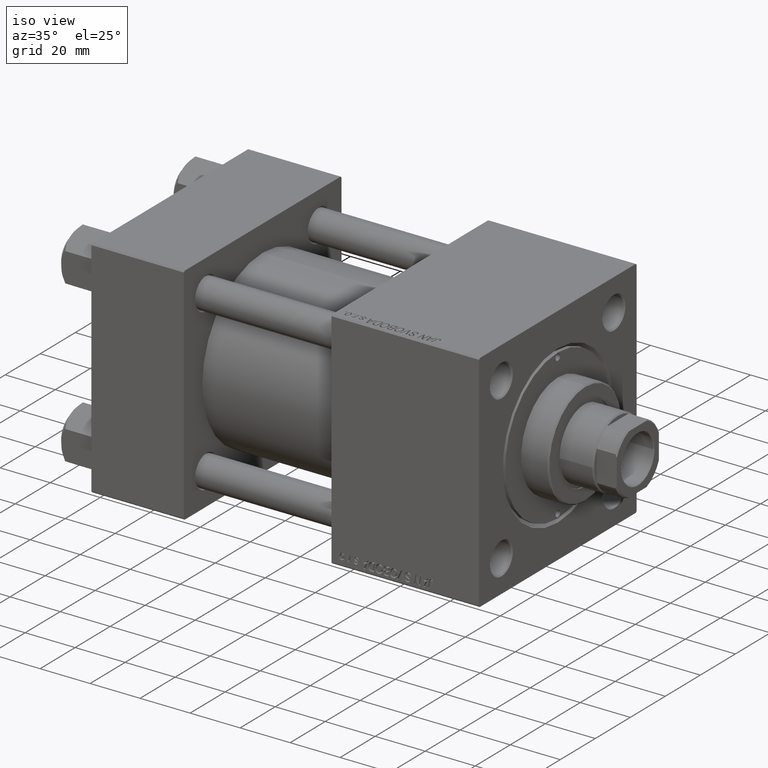
[diagram: clean part render]
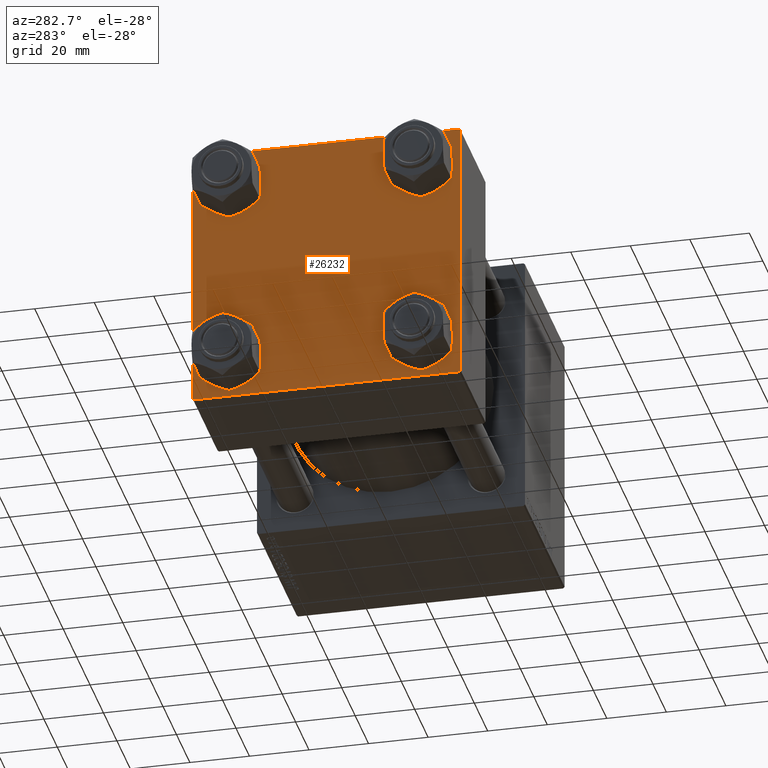
[diagram: tour spotlight — one face highlighted and labeled with its STEP entity id]
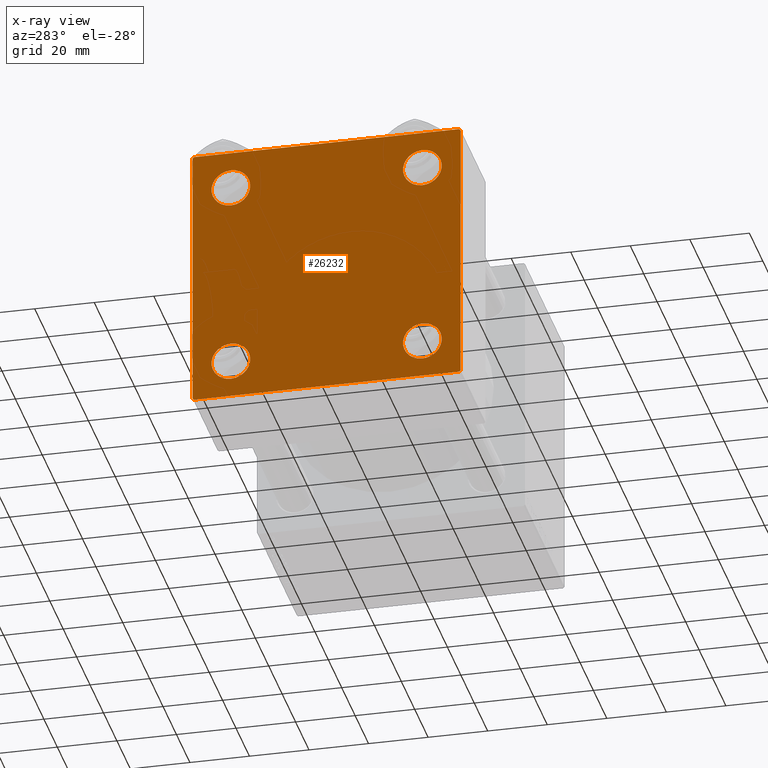
[diagram: x-ray of the same camera — body ghosted, this tour face saturated]
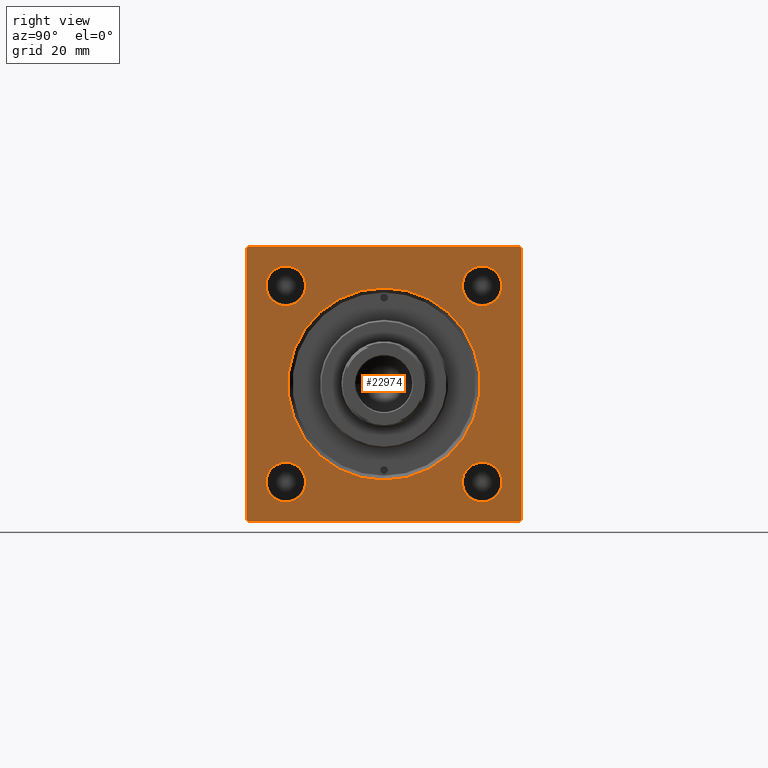
[diagram: tour spotlight — one face highlighted and labeled with its STEP entity id]
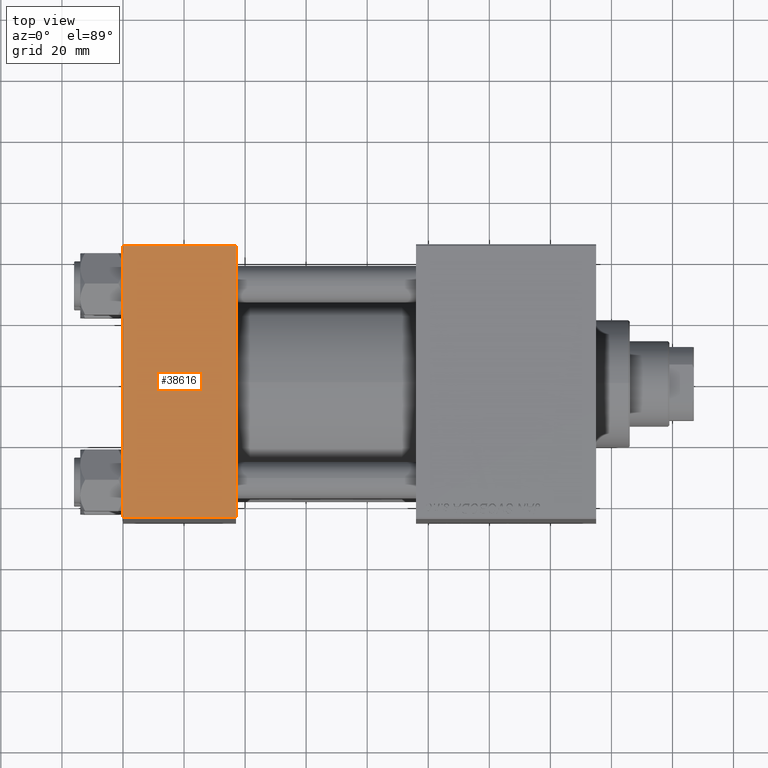
[diagram: tour spotlight — one face highlighted and labeled with its STEP entity id]
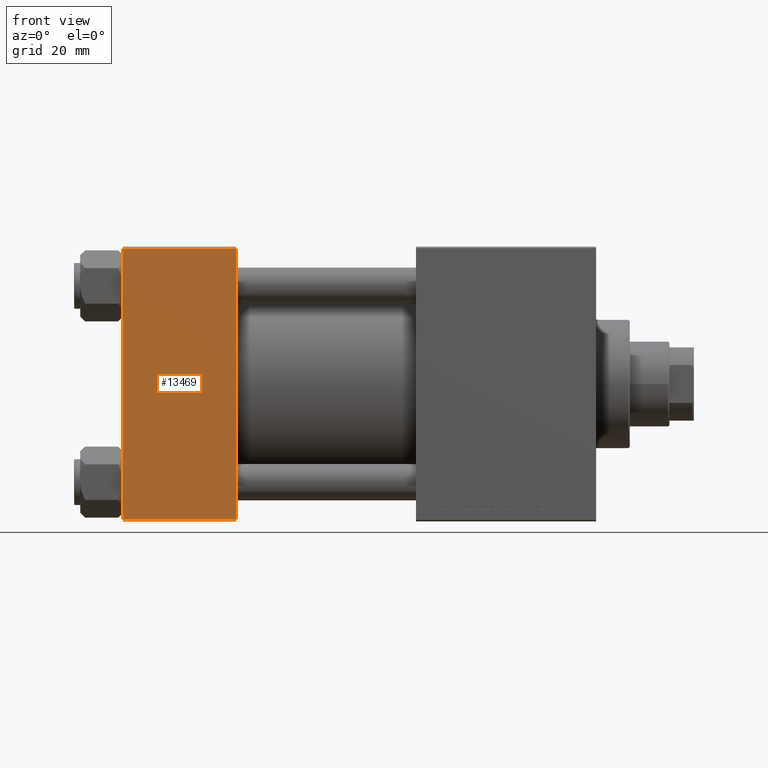
[diagram: tour spotlight — one face highlighted and labeled with its STEP entity id]
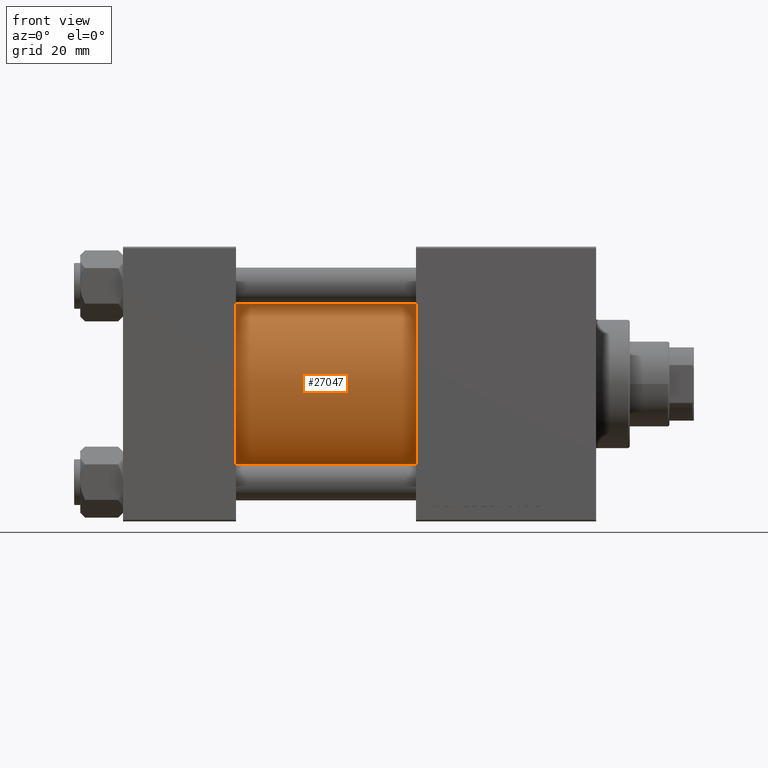
[diagram: tour spotlight — one face highlighted and labeled with its STEP entity id]
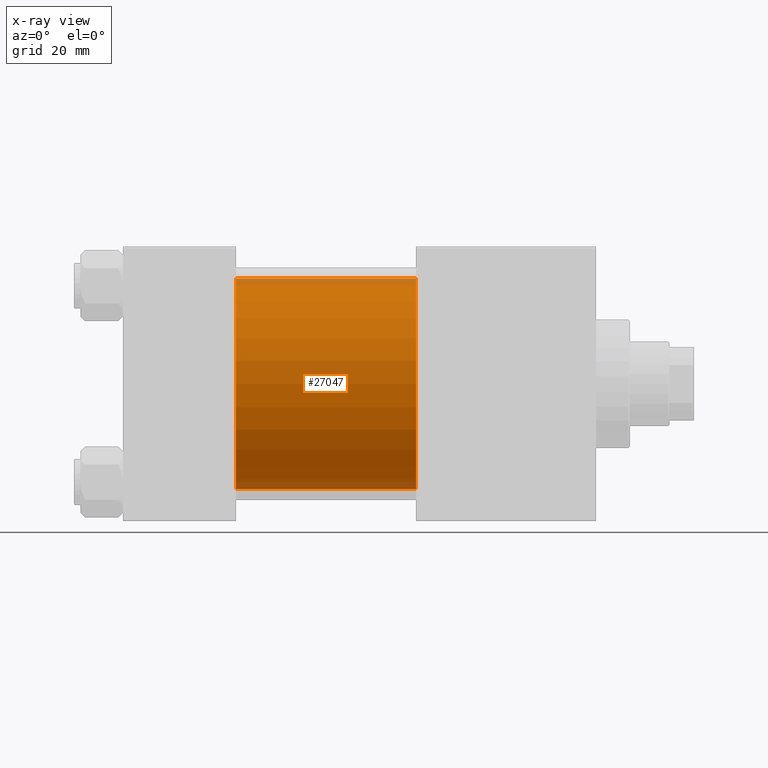
[diagram: x-ray of the same camera — body ghosted, this tour face saturated]
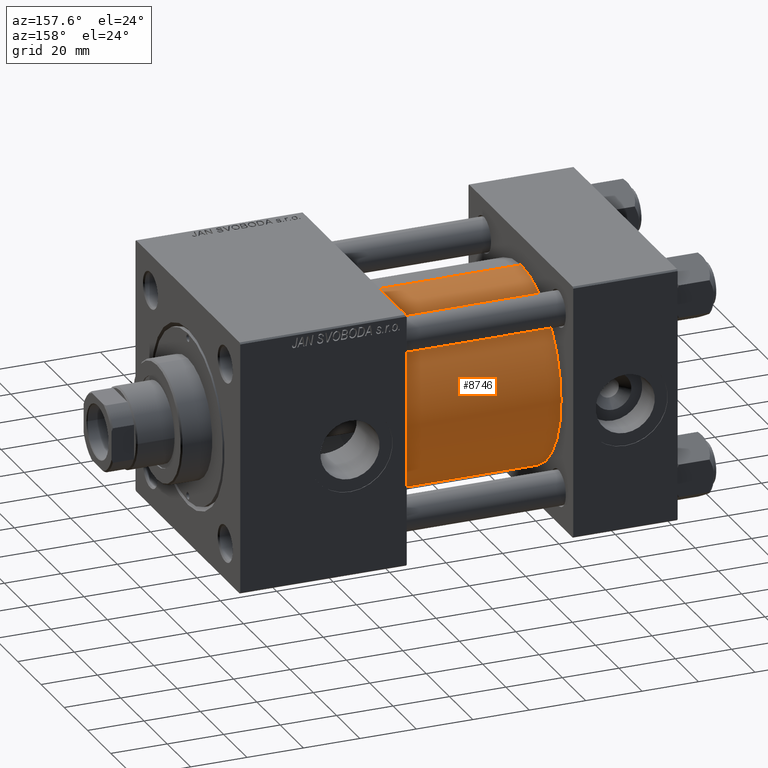
[diagram: tour spotlight — one face highlighted and labeled with its STEP entity id]
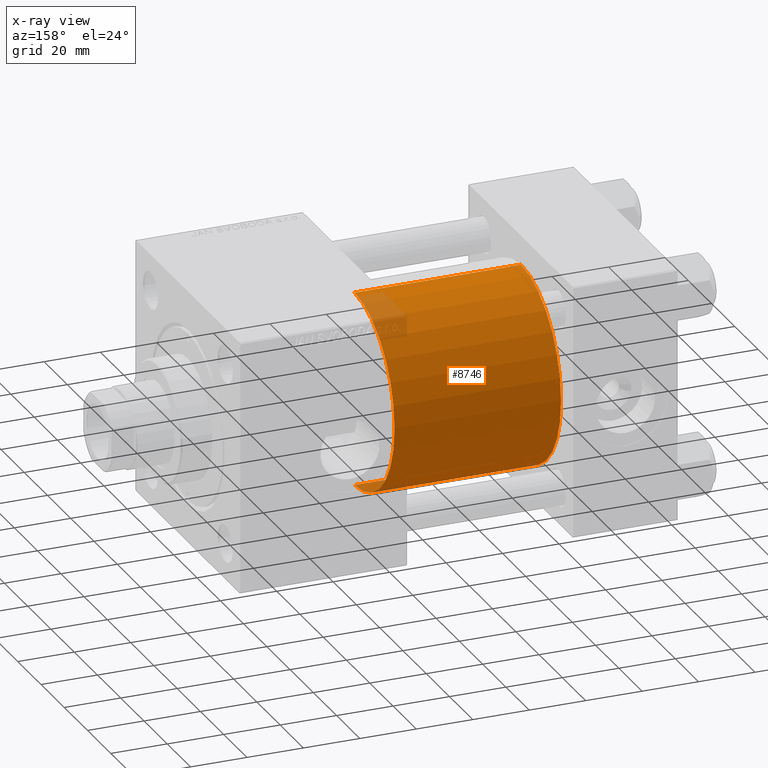
[diagram: x-ray of the same camera — body ghosted, this tour face saturated]
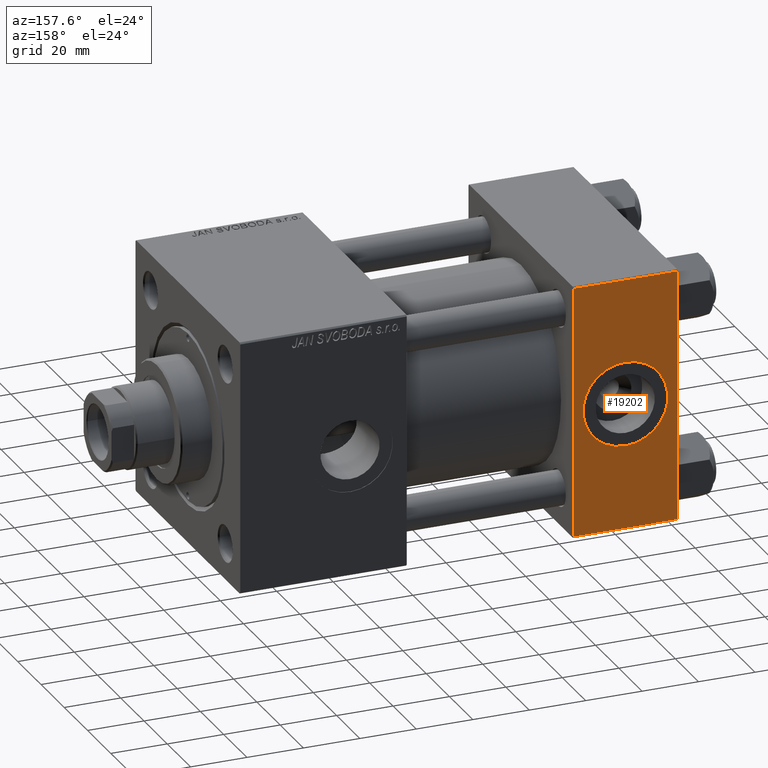
[diagram: tour spotlight — one face highlighted and labeled with its STEP entity id]
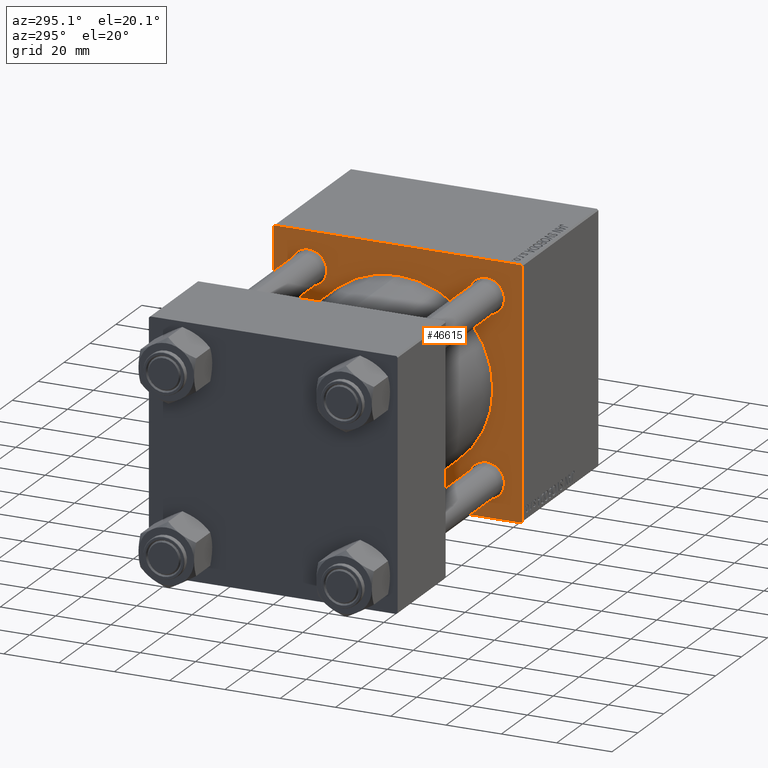
[diagram: tour spotlight — one face highlighted and labeled with its STEP entity id]
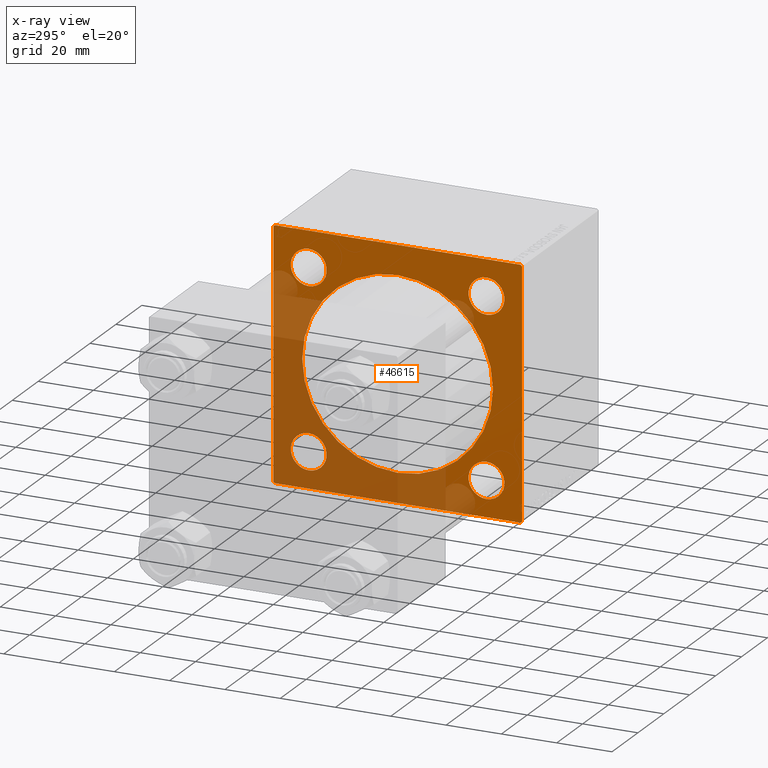
[diagram: x-ray of the same camera — body ghosted, this tour face saturated]
A machine part: a face-by-face anatomy tour. The part has 1155 B-rep faces; the first image is the clean iso view, then the 8 largest visible faces are spotlighted one at a time (largest first), each with its STEP entity span.

Face 1 — auxiliary view, entity #26232. An x-ray twin of the same camera follows (body ghosted, this face saturated) — the face is partly hidden behind the body. In plain terms, the highlighted planar face has unit normal (-1, 0, 0).
Definition (entity closure, byte-faithful):
#87 = VECTOR ( 'NONE', #44219, 1000.000000000000000 ) ;
#1354 = CARTESIAN_POINT ( 'NONE',  ( 0.000000000000000000, 32.14999999999999147, -32.15000000000000568 ) ) ;
#1743 = CARTESIAN_POINT ( 'NONE',  ( 0.000000000000000000, 44.99999999999998579, 45.00000000000001421 ) ) ;
#2221 = AXIS2_PLACEMENT_3D ( 'NONE', #1354, #44153, #36252 ) ;
#2438 = CARTESIAN_POINT ( 'NONE',  ( 0.000000000000000000, 44.99999999999998579, -44.99999999999998579 ) ) ;
#2523 = CARTESIAN_POINT ( 'NONE',  ( 0.000000000000000000, -45.00000000000000711, 45.00000000000000000 ) ) ;
#2749 = DIRECTION ( 'NONE',  ( 1.000000000000000000, -0.000000000000000000, 0.000000000000000000 ) ) ;
#2821 = DIRECTION ( 'NONE',  ( 0.000000000000000000, -1.000000000000000000, -1.541976423090495387E-16 ) ) ;
#2933 = EDGE_LOOP ( 'NONE', ( #46814, #14085 ) ) ;
#3199 = CIRCLE ( 'NONE', #15424, 6.499999999999977796 ) ;
#3668 = CARTESIAN_POINT ( 'NONE',  ( -0.000000000000000000, -44.75000000000029843, 44.74999999999967315 ) ) ;
#4059 = CARTESIAN_POINT ( 'NONE',  ( 0.000000000000000000, 44.99999999999998579, -44.49999999999995737 ) ) ;
#4663 = EDGE_CURVE ( 'NONE', #13624, #33091, #9253, .T. ) ;
#4726 = VECTOR ( 'NONE', #9227, 1000.000000000000114 ) ;
#4785 = EDGE_CURVE ( 'NONE', #48277, #36766, #27001, .T. ) ;
#5110 = VERTEX_POINT ( 'NONE', #21012 ) ;
#5588 = VERTEX_POINT ( 'NONE', #32657 ) ;
#5720 = EDGE_LOOP ( 'NONE', ( #36508, #45145 ) ) ;
#6064 = EDGE_CURVE ( 'NONE', #43404, #8323, #39276, .T. ) ;
#6210 = ORIENTED_EDGE ( 'NONE', *, *, #40955, .T. ) ;
#6353 = ORIENTED_EDGE ( 'NONE', *, *, #4785, .F. ) ;
#6546 = CARTESIAN_POINT ( 'NONE',  ( 0.000000000000000000, -44.49999999999995737, -45.00000000000000000 ) ) ;
#6676 = EDGE_LOOP ( 'NONE', ( #29279, #31449, #22756, #27049, #8437, #16859, #6353, #7593 ) ) ;
#6851 = DIRECTION ( 'NONE',  ( 0.000000000000000000, 7.709882115452476934E-17, -1.000000000000000000 ) ) ;
#6906 = CARTESIAN_POINT ( 'NONE',  ( 0.000000000000000000, 44.99999999999998579, 45.00000000000001421 ) ) ;
#7593 = ORIENTED_EDGE ( 'NONE', *, *, #19857, .T. ) ;
#7614 = VECTOR ( 'NONE', #2821, 1000.000000000000000 ) ;
#7780 = VERTEX_POINT ( 'NONE', #48154 ) ;
#7836 = DIRECTION ( 'NONE',  ( 1.000000000000000000, -0.000000000000000000, 0.000000000000000000 ) ) ;
#7945 = LINE ( 'NONE', #1743, #27655 ) ;
#8323 = VERTEX_POINT ( 'NONE', #32684 ) ;
#8437 = ORIENTED_EDGE ( 'NONE', *, *, #44374, .F. ) ;
#9071 = EDGE_CURVE ( 'NONE', #43309, #14304, #38452, .T. ) ;
#9227 = DIRECTION ( 'NONE',  ( 0.000000000000000000, 0.7071067811865474617, -0.7071067811865474617 ) ) ;
#9253 = CIRCLE ( 'NONE', #37741, 6.499999999999977796 ) ;
#9556 = EDGE_CURVE ( 'NONE', #49370, #7780, #26113, .T. ) ;
#9888 = FACE_BOUND ( 'NONE', #2933, .T. ) ;
#9958 = DIRECTION ( 'NONE',  ( 0.000000000000000000, 0.000000000000000000, 1.000000000000000000 ) ) ;
#10457 = CARTESIAN_POINT ( 'NONE',  ( 0.000000000000000000, 32.14999999999999147, -32.15000000000000568 ) ) ;
#10918 = LINE ( 'NONE', #2523, #48975 ) ;
#11342 = ORIENTED_EDGE ( 'NONE', *, *, #4663, .T. ) ;
#11715 = VECTOR ( 'NONE', #50166, 1000.000000000000114 ) ;
#12257 = CIRCLE ( 'NONE', #22834, 6.500000000000019540 ) ;
#12881 = VECTOR ( 'NONE', #19227, 1000.000000000000114 ) ;
#13289 = LINE ( 'NONE', #32913, #4726 ) ;
#13485 = CARTESIAN_POINT ( 'NONE',  ( 0.000000000000000000, 32.14999999999999147, 25.65000000000002700 ) ) ;
#13624 = VERTEX_POINT ( 'NONE', #13485 ) ;
#13776 = DIRECTION ( 'NONE',  ( 1.000000000000000000, -0.000000000000000000, 0.000000000000000000 ) ) ;
#13936 = EDGE_CURVE ( 'NONE', #33091, #13624, #19189, .T. ) ;
#14085 = ORIENTED_EDGE ( 'NONE', *, *, #19814, .T. ) ;
#14160 = DIRECTION ( 'NONE',  ( 0.000000000000000000, -0.7071067811865474617, 0.7071067811865474617 ) ) ;
#14217 = FACE_OUTER_BOUND ( 'NONE', #6676, .T. ) ;
#14296 = DIRECTION ( 'NONE',  ( 0.000000000000000000, 0.000000000000000000, 1.000000000000000000 ) ) ;
#14304 = VERTEX_POINT ( 'NONE', #34769 ) ;
#14742 = DIRECTION ( 'NONE',  ( 0.000000000000000000, 0.000000000000000000, 1.000000000000000000 ) ) ;
#15424 = AXIS2_PLACEMENT_3D ( 'NONE', #10457, #13776, #9958 ) ;
#15498 = AXIS2_PLACEMENT_3D ( 'NONE', #26565, #26315, #42096 ) ;
#16131 = ORIENTED_EDGE ( 'NONE', *, *, #27903, .T. ) ;
#16859 = ORIENTED_EDGE ( 'NONE', *, *, #34672, .T. ) ;
#16877 = CARTESIAN_POINT ( 'NONE',  ( 0.000000000000000000, -32.14999999999997726, -32.15000000000001279 ) ) ;
#17186 = VERTEX_POINT ( 'NONE', #27111 ) ;
#17200 = EDGE_CURVE ( 'NONE', #23194, #18080, #36359, .T. ) ;
#17229 = LINE ( 'NONE', #2438, #87 ) ;
#17298 = DIRECTION ( 'NONE',  ( 0.000000000000000000, 0.000000000000000000, -1.000000000000000000 ) ) ;
#17384 = DIRECTION ( 'NONE',  ( 1.000000000000000000, -0.000000000000000000, 0.000000000000000000 ) ) ;
#18080 = VERTEX_POINT ( 'NONE', #24487 ) ;
#18305 = DIRECTION ( 'NONE',  ( 0.000000000000000000, 0.000000000000000000, 1.000000000000000000 ) ) ;
#19189 = CIRCLE ( 'NONE', #32191, 6.499999999999977796 ) ;
#19227 = DIRECTION ( 'NONE',  ( -0.000000000000000000, 0.7071067811865425767, 0.7071067811865524577 ) ) ;
#19573 = DIRECTION ( 'NONE',  ( 0.000000000000000000, 0.000000000000000000, 1.000000000000000000 ) ) ;
#19814 = EDGE_CURVE ( 'NONE', #8323, #43404, #48672, .T. ) ;
#19857 = EDGE_CURVE ( 'NONE', #48277, #17186, #13289, .T. ) ;
#20203 = AXIS2_PLACEMENT_3D ( 'NONE', #16877, #17384, #48710 ) ;
#21012 = CARTESIAN_POINT ( 'NONE',  ( 0.000000000000000000, -32.14999999999997726, 38.65000000000003411 ) ) ;
#21615 = DIRECTION ( 'NONE',  ( -0.000000000000000000, 0.000000000000000000, 1.000000000000000000 ) ) ;
#21867 = FACE_BOUND ( 'NONE', #39582, .T. ) ;
#22079 = EDGE_LOOP ( 'NONE', ( #16131, #6210 ) ) ;
#22691 = DIRECTION ( 'NONE',  ( 1.000000000000000000, -0.000000000000000000, 0.000000000000000000 ) ) ;
#22756 = ORIENTED_EDGE ( 'NONE', *, *, #42395, .T. ) ;
#22834 = AXIS2_PLACEMENT_3D ( 'NONE', #29751, #2749, #18305 ) ;
#23194 = VERTEX_POINT ( 'NONE', #50054 ) ;
#24487 = CARTESIAN_POINT ( 'NONE',  ( 0.000000000000000000, 32.14999999999999147, -38.64999999999998437 ) ) ;
#24908 = PLANE ( 'NONE',  #26799 ) ;
#25414 = FACE_BOUND ( 'NONE', #5720, .T. ) ;
#25958 = CARTESIAN_POINT ( 'NONE',  ( 0.000000000000000000, -32.14999999999997726, -32.15000000000001279 ) ) ;
#26113 = LINE ( 'NONE', #41145, #29659 ) ;
#26232 = ADVANCED_FACE ( 'NONE', ( #33571, #9888, #25414, #21867, #14217 ), #24908, .T. ) ;
#26315 = DIRECTION ( 'NONE',  ( 1.000000000000000000, -0.000000000000000000, 0.000000000000000000 ) ) ;
#26565 = CARTESIAN_POINT ( 'NONE',  ( 0.000000000000000000, -32.14999999999997726, 32.15000000000001279 ) ) ;
#26793 = EDGE_CURVE ( 'NONE', #18080, #23194, #3199, .T. ) ;
#26799 = AXIS2_PLACEMENT_3D ( 'NONE', #44529, #29741, #21615 ) ;
#27001 = LINE ( 'NONE', #6906, #7614 ) ;
#27049 = ORIENTED_EDGE ( 'NONE', *, *, #9556, .T. ) ;
#27111 = CARTESIAN_POINT ( 'NONE',  ( 0.000000000000000000, 44.99999999999998579, 44.50000000000001421 ) ) ;
#27134 = CARTESIAN_POINT ( 'NONE',  ( 0.000000000000000000, 44.49999999999998579, 45.00000000000001421 ) ) ;
#27655 = VECTOR ( 'NONE', #17298, 1000.000000000000000 ) ;
#27903 = EDGE_CURVE ( 'NONE', #5110, #36286, #29307, .T. ) ;
#28037 = EDGE_CURVE ( 'NONE', #17186, #43309, #7945, .T. ) ;
#29279 = ORIENTED_EDGE ( 'NONE', *, *, #28037, .T. ) ;
#29307 = CIRCLE ( 'NONE', #15498, 6.500000000000019540 ) ;
#29513 = CARTESIAN_POINT ( 'NONE',  ( 0.000000000000000000, -32.14999999999997726, -25.65000000000003411 ) ) ;
#29659 = VECTOR ( 'NONE', #14160, 1000.000000000000114 ) ;
#29741 = DIRECTION ( 'NONE',  ( -1.000000000000000000, 0.000000000000000000, -0.000000000000000000 ) ) ;
#29751 = CARTESIAN_POINT ( 'NONE',  ( 0.000000000000000000, -32.14999999999997726, 32.15000000000001279 ) ) ;
#31449 = ORIENTED_EDGE ( 'NONE', *, *, #9071, .T. ) ;
#32191 = AXIS2_PLACEMENT_3D ( 'NONE', #42737, #7836, #19573 ) ;
#32657 = CARTESIAN_POINT ( 'NONE',  ( 0.000000000000000000, -45.00000000000000711, 44.49999999999997158 ) ) ;
#32684 = CARTESIAN_POINT ( 'NONE',  ( 0.000000000000000000, -32.14999999999997726, -38.64999999999999147 ) ) ;
#32913 = CARTESIAN_POINT ( 'NONE',  ( 0.000000000000000000, 44.74999999999999289, 44.74999999999999289 ) ) ;
#33091 = VERTEX_POINT ( 'NONE', #45016 ) ;
#33571 = FACE_BOUND ( 'NONE', #22079, .T. ) ;
#33691 = AXIS2_PLACEMENT_3D ( 'NONE', #25958, #46313, #14742 ) ;
#34618 = CARTESIAN_POINT ( 'NONE',  ( 0.000000000000000000, 44.74999999999998579, -44.74999999999998579 ) ) ;
#34672 = EDGE_CURVE ( 'NONE', #5588, #36766, #47209, .T. ) ;
#34769 = CARTESIAN_POINT ( 'NONE',  ( 0.000000000000000000, 44.49999999999998579, -44.99999999999998579 ) ) ;
#35711 = CARTESIAN_POINT ( 'NONE',  ( 0.000000000000000000, -44.49999999999995737, 45.00000000000000000 ) ) ;
#36252 = DIRECTION ( 'NONE',  ( 0.000000000000000000, 0.000000000000000000, 1.000000000000000000 ) ) ;
#36286 = VERTEX_POINT ( 'NONE', #46230 ) ;
#36359 = CIRCLE ( 'NONE', #2221, 6.499999999999977796 ) ;
#36508 = ORIENTED_EDGE ( 'NONE', *, *, #17200, .T. ) ;
#36766 = VERTEX_POINT ( 'NONE', #35711 ) ;
#37741 = AXIS2_PLACEMENT_3D ( 'NONE', #45367, #22691, #14296 ) ;
#38452 = LINE ( 'NONE', #34618, #11715 ) ;
#39276 = CIRCLE ( 'NONE', #33691, 6.499999999999977796 ) ;
#39582 = EDGE_LOOP ( 'NONE', ( #46501, #11342 ) ) ;
#40955 = EDGE_CURVE ( 'NONE', #36286, #5110, #12257, .T. ) ;
#41145 = CARTESIAN_POINT ( 'NONE',  ( 0.000000000000000000, -44.74999999999998579, -44.74999999999998579 ) ) ;
#42096 = DIRECTION ( 'NONE',  ( 0.000000000000000000, 0.000000000000000000, 1.000000000000000000 ) ) ;
#42395 = EDGE_CURVE ( 'NONE', #14304, #49370, #17229, .T. ) ;
#42737 = CARTESIAN_POINT ( 'NONE',  ( 0.000000000000000000, 32.14999999999999147, 32.15000000000000568 ) ) ;
#43309 = VERTEX_POINT ( 'NONE', #4059 ) ;
#43404 = VERTEX_POINT ( 'NONE', #29513 ) ;
#44153 = DIRECTION ( 'NONE',  ( 1.000000000000000000, -0.000000000000000000, 0.000000000000000000 ) ) ;
#44219 = DIRECTION ( 'NONE',  ( 0.000000000000000000, -1.000000000000000000, -1.541976423090495633E-16 ) ) ;
#44374 = EDGE_CURVE ( 'NONE', #5588, #7780, #10918, .T. ) ;
#44529 = CARTESIAN_POINT ( 'NONE',  ( 0.000000000000000000, 0.000000000000000000, 0.000000000000000000 ) ) ;
#45016 = CARTESIAN_POINT ( 'NONE',  ( 0.000000000000000000, 32.14999999999999147, 38.64999999999999147 ) ) ;
#45145 = ORIENTED_EDGE ( 'NONE', *, *, #26793, .T. ) ;
#45367 = CARTESIAN_POINT ( 'NONE',  ( 0.000000000000000000, 32.14999999999999147, 32.15000000000000568 ) ) ;
#46230 = CARTESIAN_POINT ( 'NONE',  ( 0.000000000000000000, -32.14999999999997726, 25.64999999999999147 ) ) ;
#46313 = DIRECTION ( 'NONE',  ( 1.000000000000000000, -0.000000000000000000, 0.000000000000000000 ) ) ;
#46501 = ORIENTED_EDGE ( 'NONE', *, *, #13936, .T. ) ;
#46814 = ORIENTED_EDGE ( 'NONE', *, *, #6064, .T. ) ;
#47209 = LINE ( 'NONE', #3668, #12881 ) ;
#48154 = CARTESIAN_POINT ( 'NONE',  ( 0.000000000000000000, -45.00000000000000000, -44.49999999999995737 ) ) ;
#48277 = VERTEX_POINT ( 'NONE', #27134 ) ;
#48672 = CIRCLE ( 'NONE', #20203, 6.499999999999977796 ) ;
#48710 = DIRECTION ( 'NONE',  ( 0.000000000000000000, 0.000000000000000000, 1.000000000000000000 ) ) ;
#48975 = VECTOR ( 'NONE', #6851, 1000.000000000000000 ) ;
#49370 = VERTEX_POINT ( 'NONE', #6546 ) ;
#50054 = CARTESIAN_POINT ( 'NONE',  ( 0.000000000000000000, 32.14999999999999147, -25.65000000000002700 ) ) ;
#50166 = DIRECTION ( 'NONE',  ( -0.000000000000000000, -0.7071067811865474617, -0.7071067811865474617 ) ) ;

Face 2 — right view, entity #22974. In plain terms, the highlighted planar face has unit normal (-1, 0, 0).
Definition (entity closure, byte-faithful):
#229 = ORIENTED_EDGE ( 'NONE', *, *, #6317, .T. ) ;
#565 = DIRECTION ( 'NONE',  ( -1.000000000000000000, -0.000000000000000000, -0.000000000000000000 ) ) ;
#917 = VERTEX_POINT ( 'NONE', #38869 ) ;
#1346 = LINE ( 'NONE', #27846, #47768 ) ;
#1445 = CARTESIAN_POINT ( 'NONE',  ( 155.0000000000000000, -45.00000000000000000, 44.49999999999995737 ) ) ;
#1998 = VERTEX_POINT ( 'NONE', #36573 ) ;
#2195 = CARTESIAN_POINT ( 'NONE',  ( 155.0000000000000000, 32.14999999999999147, 25.64999999999997726 ) ) ;
#2456 = DIRECTION ( 'NONE',  ( -0.000000000000000000, -0.7071067811865474617, -0.7071067811865474617 ) ) ;
#2780 = FACE_OUTER_BOUND ( 'NONE', #18522, .T. ) ;
#3591 = VERTEX_POINT ( 'NONE', #33822 ) ;
#3650 = FACE_BOUND ( 'NONE', #29865, .T. ) ;
#3946 = DIRECTION ( 'NONE',  ( 0.000000000000000000, 0.000000000000000000, 1.000000000000000000 ) ) ;
#4105 = CARTESIAN_POINT ( 'NONE',  ( 155.0000000000000000, 45.00000000000001421, 44.49999999999997158 ) ) ;
#4490 = EDGE_CURVE ( 'NONE', #48334, #11835, #5993, .T. ) ;
#4632 = ORIENTED_EDGE ( 'NONE', *, *, #29288, .T. ) ;
#4754 = EDGE_CURVE ( 'NONE', #21630, #9727, #10099, .T. ) ;
#5697 = CARTESIAN_POINT ( 'NONE',  ( 155.0000000000000000, -44.99999999999999289, -44.49999999999991473 ) ) ;
#5993 = CIRCLE ( 'NONE', #43395, 6.500000000000033751 ) ;
#6008 = ORIENTED_EDGE ( 'NONE', *, *, #4490, .T. ) ;
#6114 = FACE_BOUND ( 'NONE', #10362, .T. ) ;
#6212 = DIRECTION ( 'NONE',  ( 0.000000000000000000, 0.000000000000000000, 1.000000000000000000 ) ) ;
#6317 = EDGE_CURVE ( 'NONE', #49122, #3591, #22322, .T. ) ;
#6559 = CIRCLE ( 'NONE', #13051, 6.500000000000033751 ) ;
#6599 = DIRECTION ( 'NONE',  ( 0.000000000000000000, 0.000000000000000000, 1.000000000000000000 ) ) ;
#6715 = CARTESIAN_POINT ( 'NONE',  ( 155.0000000000000000, 45.00000000000001421, -45.00000000000000000 ) ) ;
#6825 = ORIENTED_EDGE ( 'NONE', *, *, #48107, .T. ) ;
#7389 = DIRECTION ( 'NONE',  ( 0.000000000000000000, 0.000000000000000000, 1.000000000000000000 ) ) ;
#7482 = CARTESIAN_POINT ( 'NONE',  ( 155.0000000000000000, 0.000000000000000000, 0.000000000000000000 ) ) ;
#9032 = CARTESIAN_POINT ( 'NONE',  ( 155.0000000000000000, -32.14999999999999147, 38.65000000000002700 ) ) ;
#9208 = DIRECTION ( 'NONE',  ( -1.000000000000000000, -0.000000000000000000, -0.000000000000000000 ) ) ;
#9558 = AXIS2_PLACEMENT_3D ( 'NONE', #26200, #18324, #6599 ) ;
#9727 = VERTEX_POINT ( 'NONE', #36191 ) ;
#9815 = LINE ( 'NONE', #27028, #10665 ) ;
#10099 = CIRCLE ( 'NONE', #32019, 6.500000000000026645 ) ;
#10362 = EDGE_LOOP ( 'NONE', ( #47109, #46619 ) ) ;
#10482 = EDGE_CURVE ( 'NONE', #1998, #917, #14357, .T. ) ;
#10528 = DIRECTION ( 'NONE',  ( 0.000000000000000000, -1.000000000000000000, -1.541976423090495140E-16 ) ) ;
#10628 = CIRCLE ( 'NONE', #47231, 31.50000000000000000 ) ;
#10665 = VECTOR ( 'NONE', #33500, 1000.000000000000114 ) ;
#10902 = ORIENTED_EDGE ( 'NONE', *, *, #12390, .T. ) ;
#11096 = DIRECTION ( 'NONE',  ( -1.000000000000000000, -0.000000000000000000, -0.000000000000000000 ) ) ;
#11126 = EDGE_CURVE ( 'NONE', #9727, #21630, #20751, .T. ) ;
#11221 = DIRECTION ( 'NONE',  ( 0.000000000000000000, 0.000000000000000000, 1.000000000000000000 ) ) ;
#11835 = VERTEX_POINT ( 'NONE', #42496 ) ;
#12390 = EDGE_CURVE ( 'NONE', #36038, #41939, #29882, .T. ) ;
#12543 = PLANE ( 'NONE',  #38868 ) ;
#13035 = DIRECTION ( 'NONE',  ( 0.000000000000000000, 0.000000000000000000, 1.000000000000000000 ) ) ;
#13051 = AXIS2_PLACEMENT_3D ( 'NONE', #34515, #11096, #46740 ) ;
#13424 = DIRECTION ( 'NONE',  ( -1.000000000000000000, -0.000000000000000000, -0.000000000000000000 ) ) ;
#14024 = VECTOR ( 'NONE', #2456, 1000.000000000000114 ) ;
#14357 = LINE ( 'NONE', #6715, #31290 ) ;
#14625 = VERTEX_POINT ( 'NONE', #46444 ) ;
#15041 = CARTESIAN_POINT ( 'NONE',  ( 155.0000000000000000, 32.14999999999999147, -32.15000000000000568 ) ) ;
#15824 = EDGE_CURVE ( 'NONE', #42675, #917, #25669, .T. ) ;
#15986 = LINE ( 'NONE', #32034, #21001 ) ;
#16364 = EDGE_CURVE ( 'NONE', #22523, #42675, #44849, .T. ) ;
#16745 = DIRECTION ( 'NONE',  ( -0.000000000000000000, 0.7071067811865474617, 0.7071067811865474617 ) ) ;
#16943 = VERTEX_POINT ( 'NONE', #20543 ) ;
#17348 = EDGE_LOOP ( 'NONE', ( #39197, #44049 ) ) ;
#18128 = CARTESIAN_POINT ( 'NONE',  ( 155.0000000000000000, -32.14999999999999147, 32.14999999999999147 ) ) ;
#18324 = DIRECTION ( 'NONE',  ( -1.000000000000000000, -0.000000000000000000, -0.000000000000000000 ) ) ;
#18363 = VERTEX_POINT ( 'NONE', #34380 ) ;
#18365 = CARTESIAN_POINT ( 'NONE',  ( 155.0000000000000000, 44.49999999999998579, 45.00000000000000000 ) ) ;
#18522 = EDGE_LOOP ( 'NONE', ( #37552, #36122, #23374, #33656, #32563, #20025, #10902, #6825 ) ) ;
#19810 = CARTESIAN_POINT ( 'NONE',  ( 155.0000000000000000, -44.49999999999994316, 44.99999999999998579 ) ) ;
#20025 = ORIENTED_EDGE ( 'NONE', *, *, #30583, .T. ) ;
#20103 = ORIENTED_EDGE ( 'NONE', *, *, #32441, .T. ) ;
#20543 = CARTESIAN_POINT ( 'NONE',  ( 155.0000000000000000, 32.14999999999999147, -25.64999999999997016 ) ) ;
#20751 = CIRCLE ( 'NONE', #49218, 6.500000000000026645 ) ;
#21001 = VECTOR ( 'NONE', #16745, 1000.000000000000114 ) ;
#21630 = VERTEX_POINT ( 'NONE', #2195 ) ;
#21861 = DIRECTION ( 'NONE',  ( 0.000000000000000000, 0.7071067811865524577, -0.7071067811865426878 ) ) ;
#21910 = FACE_BOUND ( 'NONE', #27862, .T. ) ;
#21928 = DIRECTION ( 'NONE',  ( 0.000000000000000000, 7.709882115452478166E-17, -1.000000000000000000 ) ) ;
#22011 = DIRECTION ( 'NONE',  ( -1.000000000000000000, -0.000000000000000000, -0.000000000000000000 ) ) ;
#22152 = CARTESIAN_POINT ( 'NONE',  ( 155.0000000000000000, 0.000000000000000000, -31.50000000000000000 ) ) ;
#22322 = CIRCLE ( 'NONE', #41825, 31.50000000000000000 ) ;
#22481 = EDGE_CURVE ( 'NONE', #1998, #29305, #15986, .T. ) ;
#22523 = VERTEX_POINT ( 'NONE', #1445 ) ;
#22708 = AXIS2_PLACEMENT_3D ( 'NONE', #15041, #30321, #7389 ) ;
#22974 = ADVANCED_FACE ( 'NONE', ( #38549, #3650, #29534, #6114, #21910, #2780 ), #12543, .F. ) ;
#23374 = ORIENTED_EDGE ( 'NONE', *, *, #10482, .F. ) ;
#23410 = CIRCLE ( 'NONE', #9558, 6.500000000000033751 ) ;
#24111 = VERTEX_POINT ( 'NONE', #46717 ) ;
#24504 = CARTESIAN_POINT ( 'NONE',  ( 155.0000000000000000, -32.14999999999999147, 32.14999999999999147 ) ) ;
#24723 = CARTESIAN_POINT ( 'NONE',  ( 155.0000000000000000, -45.00000000000000000, 44.99999999999998579 ) ) ;
#24767 = DIRECTION ( 'NONE',  ( -1.000000000000000000, 0.000000000000000000, -0.000000000000000000 ) ) ;
#25226 = EDGE_CURVE ( 'NONE', #14625, #16943, #49539, .T. ) ;
#25569 = CARTESIAN_POINT ( 'NONE',  ( 155.0000000000000000, 32.14999999999999147, -32.15000000000000568 ) ) ;
#25659 = VECTOR ( 'NONE', #10528, 1000.000000000000000 ) ;
#25669 = LINE ( 'NONE', #41196, #36319 ) ;
#26200 = CARTESIAN_POINT ( 'NONE',  ( 155.0000000000000000, -32.15000000000001279, -32.15000000000000568 ) ) ;
#26637 = VERTEX_POINT ( 'NONE', #4105 ) ;
#27028 = CARTESIAN_POINT ( 'NONE',  ( 155.0000000000000000, 44.49999999999998579, 45.00000000000000000 ) ) ;
#27846 = CARTESIAN_POINT ( 'NONE',  ( 155.0000000000000000, 45.00000000000001421, 45.00000000000000000 ) ) ;
#27859 = CIRCLE ( 'NONE', #49005, 6.500000000000033751 ) ;
#27862 = EDGE_LOOP ( 'NONE', ( #229, #4632 ) ) ;
#28348 = CIRCLE ( 'NONE', #39611, 6.500000000000033751 ) ;
#28411 = EDGE_CURVE ( 'NONE', #18363, #24111, #6559, .T. ) ;
#28631 = EDGE_LOOP ( 'NONE', ( #20103, #35717 ) ) ;
#29288 = EDGE_CURVE ( 'NONE', #3591, #49122, #10628, .T. ) ;
#29305 = VERTEX_POINT ( 'NONE', #46450 ) ;
#29534 = FACE_BOUND ( 'NONE', #28631, .T. ) ;
#29865 = EDGE_LOOP ( 'NONE', ( #32077, #6008 ) ) ;
#29882 = LINE ( 'NONE', #45423, #25659 ) ;
#29960 = LINE ( 'NONE', #33780, #14024 ) ;
#30321 = DIRECTION ( 'NONE',  ( -1.000000000000000000, -0.000000000000000000, -0.000000000000000000 ) ) ;
#30583 = EDGE_CURVE ( 'NONE', #26637, #36038, #9815, .T. ) ;
#30663 = DIRECTION ( 'NONE',  ( 0.000000000000000000, 0.000000000000000000, 1.000000000000000000 ) ) ;
#31290 = VECTOR ( 'NONE', #41098, 1000.000000000000000 ) ;
#31436 = EDGE_CURVE ( 'NONE', #26637, #29305, #1346, .T. ) ;
#31810 = EDGE_CURVE ( 'NONE', #16943, #14625, #28348, .T. ) ;
#31929 = DIRECTION ( 'NONE',  ( 0.000000000000000000, 0.000000000000000000, -1.000000000000000000 ) ) ;
#32019 = AXIS2_PLACEMENT_3D ( 'NONE', #41537, #46365, #11221 ) ;
#32034 = CARTESIAN_POINT ( 'NONE',  ( 155.0000000000000000, 45.00000000000001421, -44.50000000000000000 ) ) ;
#32077 = ORIENTED_EDGE ( 'NONE', *, *, #48713, .T. ) ;
#32281 = DIRECTION ( 'NONE',  ( 0.000000000000000000, 0.000000000000000000, 1.000000000000000000 ) ) ;
#32441 = EDGE_CURVE ( 'NONE', #24111, #18363, #23410, .T. ) ;
#32563 = ORIENTED_EDGE ( 'NONE', *, *, #31436, .F. ) ;
#33500 = DIRECTION ( 'NONE',  ( 0.000000000000000000, -0.7071067811865474617, 0.7071067811865474617 ) ) ;
#33656 = ORIENTED_EDGE ( 'NONE', *, *, #22481, .T. ) ;
#33780 = CARTESIAN_POINT ( 'NONE',  ( 155.0000000000000000, -45.00000000000000000, 44.49999999999995737 ) ) ;
#33822 = CARTESIAN_POINT ( 'NONE',  ( 155.0000000000000000, 3.857637417314162689E-15, 31.50000000000000000 ) ) ;
#34380 = CARTESIAN_POINT ( 'NONE',  ( 155.0000000000000000, -32.15000000000001279, -25.64999999999997016 ) ) ;
#34515 = CARTESIAN_POINT ( 'NONE',  ( 155.0000000000000000, -32.15000000000001279, -32.15000000000000568 ) ) ;
#35717 = ORIENTED_EDGE ( 'NONE', *, *, #28411, .T. ) ;
#36038 = VERTEX_POINT ( 'NONE', #18365 ) ;
#36122 = ORIENTED_EDGE ( 'NONE', *, *, #15824, .T. ) ;
#36191 = CARTESIAN_POINT ( 'NONE',  ( 155.0000000000000000, 32.14999999999999147, 38.65000000000003411 ) ) ;
#36319 = VECTOR ( 'NONE', #21861, 1000.000000000000000 ) ;
#36573 = CARTESIAN_POINT ( 'NONE',  ( 155.0000000000000000, 44.50000000000001421, -45.00000000000000000 ) ) ;
#37436 = DIRECTION ( 'NONE',  ( -0.000000000000000000, 0.000000000000000000, 1.000000000000000000 ) ) ;
#37552 = ORIENTED_EDGE ( 'NONE', *, *, #16364, .T. ) ;
#38054 = DIRECTION ( 'NONE',  ( -1.000000000000000000, -0.000000000000000000, -0.000000000000000000 ) ) ;
#38549 = FACE_BOUND ( 'NONE', #17348, .T. ) ;
#38849 = CARTESIAN_POINT ( 'NONE',  ( 155.0000000000000000, 32.14999999999999147, 32.15000000000000568 ) ) ;
#38868 = AXIS2_PLACEMENT_3D ( 'NONE', #41500, #24767, #37436 ) ;
#38869 = CARTESIAN_POINT ( 'NONE',  ( 155.0000000000000000, -44.49999999999990052, -45.00000000000000000 ) ) ;
#39097 = DIRECTION ( 'NONE',  ( -1.000000000000000000, -0.000000000000000000, -0.000000000000000000 ) ) ;
#39197 = ORIENTED_EDGE ( 'NONE', *, *, #4754, .T. ) ;
#39611 = AXIS2_PLACEMENT_3D ( 'NONE', #25569, #22011, #6212 ) ;
#41098 = DIRECTION ( 'NONE',  ( 0.000000000000000000, -1.000000000000000000, 0.000000000000000000 ) ) ;
#41196 = CARTESIAN_POINT ( 'NONE',  ( 155.0000000000000000, -44.49999999999992895, -45.00000000000000000 ) ) ;
#41244 = VECTOR ( 'NONE', #21928, 1000.000000000000000 ) ;
#41500 = CARTESIAN_POINT ( 'NONE',  ( 155.0000000000000000, 0.000000000000000000, 0.000000000000000000 ) ) ;
#41537 = CARTESIAN_POINT ( 'NONE',  ( 155.0000000000000000, 32.14999999999999147, 32.15000000000000568 ) ) ;
#41825 = AXIS2_PLACEMENT_3D ( 'NONE', #44249, #13424, #32281 ) ;
#41939 = VERTEX_POINT ( 'NONE', #19810 ) ;
#42496 = CARTESIAN_POINT ( 'NONE',  ( 155.0000000000000000, -32.14999999999999147, 25.64999999999995595 ) ) ;
#42675 = VERTEX_POINT ( 'NONE', #5697 ) ;
#43395 = AXIS2_PLACEMENT_3D ( 'NONE', #18128, #9208, #48945 ) ;
#44049 = ORIENTED_EDGE ( 'NONE', *, *, #11126, .T. ) ;
#44249 = CARTESIAN_POINT ( 'NONE',  ( 155.0000000000000000, 0.000000000000000000, 0.000000000000000000 ) ) ;
#44849 = LINE ( 'NONE', #24723, #41244 ) ;
#45423 = CARTESIAN_POINT ( 'NONE',  ( 155.0000000000000000, 45.00000000000001421, 45.00000000000000000 ) ) ;
#46365 = DIRECTION ( 'NONE',  ( -1.000000000000000000, -0.000000000000000000, -0.000000000000000000 ) ) ;
#46444 = CARTESIAN_POINT ( 'NONE',  ( 155.0000000000000000, 32.14999999999999147, -38.65000000000004832 ) ) ;
#46450 = CARTESIAN_POINT ( 'NONE',  ( 155.0000000000000000, 45.00000000000001421, -44.49999999999997158 ) ) ;
#46619 = ORIENTED_EDGE ( 'NONE', *, *, #31810, .T. ) ;
#46717 = CARTESIAN_POINT ( 'NONE',  ( 155.0000000000000000, -32.15000000000001279, -38.65000000000004832 ) ) ;
#46740 = DIRECTION ( 'NONE',  ( 0.000000000000000000, 0.000000000000000000, 1.000000000000000000 ) ) ;
#47109 = ORIENTED_EDGE ( 'NONE', *, *, #25226, .T. ) ;
#47231 = AXIS2_PLACEMENT_3D ( 'NONE', #7482, #38054, #30663 ) ;
#47768 = VECTOR ( 'NONE', #31929, 1000.000000000000000 ) ;
#48107 = EDGE_CURVE ( 'NONE', #41939, #22523, #29960, .T. ) ;
#48334 = VERTEX_POINT ( 'NONE', #9032 ) ;
#48713 = EDGE_CURVE ( 'NONE', #11835, #48334, #27859, .T. ) ;
#48945 = DIRECTION ( 'NONE',  ( 0.000000000000000000, 0.000000000000000000, 1.000000000000000000 ) ) ;
#49005 = AXIS2_PLACEMENT_3D ( 'NONE', #24504, #565, #13035 ) ;
#49122 = VERTEX_POINT ( 'NONE', #22152 ) ;
#49218 = AXIS2_PLACEMENT_3D ( 'NONE', #38849, #39097, #3946 ) ;
#49539 = CIRCLE ( 'NONE', #22708, 6.500000000000033751 ) ;

Face 3 — top view, entity #38616. In plain terms, the highlighted planar face has unit normal (0, 0, -1).
Definition (entity closure, byte-faithful):
#2802 = EDGE_CURVE ( 'NONE', #47867, #48277, #47742, .T. ) ;
#2821 = DIRECTION ( 'NONE',  ( 0.000000000000000000, -1.000000000000000000, -1.541976423090495387E-16 ) ) ;
#3837 = DIRECTION ( 'NONE',  ( 1.000000000000000000, 0.000000000000000000, 0.000000000000000000 ) ) ;
#3961 = ORIENTED_EDGE ( 'NONE', *, *, #37987, .T. ) ;
#4785 = EDGE_CURVE ( 'NONE', #48277, #36766, #27001, .T. ) ;
#6906 = CARTESIAN_POINT ( 'NONE',  ( 0.000000000000000000, 44.99999999999998579, 45.00000000000001421 ) ) ;
#7614 = VECTOR ( 'NONE', #2821, 1000.000000000000000 ) ;
#7842 = CARTESIAN_POINT ( 'NONE',  ( 37.00000000000000000, -44.49999999999995737, 45.00000000000000000 ) ) ;
#8123 = AXIS2_PLACEMENT_3D ( 'NONE', #18408, #14328, #10503 ) ;
#10254 = FACE_OUTER_BOUND ( 'NONE', #47424, .T. ) ;
#10503 = DIRECTION ( 'NONE',  ( 0.000000000000000000, 1.000000000000000000, 1.541976423090495633E-16 ) ) ;
#13345 = DIRECTION ( 'NONE',  ( -1.000000000000000000, 0.000000000000000000, 0.000000000000000000 ) ) ;
#13905 = ORIENTED_EDGE ( 'NONE', *, *, #4785, .T. ) ;
#14328 = DIRECTION ( 'NONE',  ( 0.000000000000000000, 1.541976423090495633E-16, -1.000000000000000000 ) ) ;
#18158 = PLANE ( 'NONE',  #8123 ) ;
#18408 = CARTESIAN_POINT ( 'NONE',  ( 37.00000000000000000, 44.99999999999998579, 45.00000000000001421 ) ) ;
#18584 = CARTESIAN_POINT ( 'NONE',  ( 37.00000000000000000, 44.99999999999998579, 45.00000000000001421 ) ) ;
#18839 = DIRECTION ( 'NONE',  ( 0.000000000000000000, -1.000000000000000000, -1.541976423090495387E-16 ) ) ;
#23461 = CARTESIAN_POINT ( 'NONE',  ( 37.00000000000000000, -44.49999999999998579, 45.00000000000000000 ) ) ;
#25218 = VECTOR ( 'NONE', #3837, 1000.000000000000000 ) ;
#25248 = ORIENTED_EDGE ( 'NONE', *, *, #29815, .F. ) ;
#26011 = ORIENTED_EDGE ( 'NONE', *, *, #2802, .T. ) ;
#26908 = VECTOR ( 'NONE', #18839, 1000.000000000000000 ) ;
#27001 = LINE ( 'NONE', #6906, #7614 ) ;
#27134 = CARTESIAN_POINT ( 'NONE',  ( 0.000000000000000000, 44.49999999999998579, 45.00000000000001421 ) ) ;
#29815 = EDGE_CURVE ( 'NONE', #47867, #45814, #34103, .T. ) ;
#34103 = LINE ( 'NONE', #18584, #26908 ) ;
#35711 = CARTESIAN_POINT ( 'NONE',  ( 0.000000000000000000, -44.49999999999995737, 45.00000000000000000 ) ) ;
#36766 = VERTEX_POINT ( 'NONE', #35711 ) ;
#37987 = EDGE_CURVE ( 'NONE', #36766, #45814, #38742, .T. ) ;
#38616 = ADVANCED_FACE ( 'NONE', ( #10254 ), #18158, .F. ) ;
#38720 = CARTESIAN_POINT ( 'NONE',  ( 37.00000000000000000, 44.49999999999998579, 45.00000000000001421 ) ) ;
#38742 = LINE ( 'NONE', #23461, #25218 ) ;
#40602 = CARTESIAN_POINT ( 'NONE',  ( 0.000000000000000000, 44.49999999999998579, 45.00000000000001421 ) ) ;
#42519 = VECTOR ( 'NONE', #13345, 1000.000000000000000 ) ;
#45814 = VERTEX_POINT ( 'NONE', #7842 ) ;
#47424 = EDGE_LOOP ( 'NONE', ( #13905, #3961, #25248, #26011 ) ) ;
#47742 = LINE ( 'NONE', #40602, #42519 ) ;
#47867 = VERTEX_POINT ( 'NONE', #38720 ) ;
#48277 = VERTEX_POINT ( 'NONE', #27134 ) ;

Face 4 — front view, entity #13469. In plain terms, the highlighted planar face has unit normal (0, 1, 0).
Definition (entity closure, byte-faithful):
#2523 = CARTESIAN_POINT ( 'NONE',  ( 0.000000000000000000, -45.00000000000000711, 45.00000000000000000 ) ) ;
#3829 = LINE ( 'NONE', #35403, #5462 ) ;
#4090 = EDGE_CURVE ( 'NONE', #42103, #5588, #11339, .T. ) ;
#4337 = VECTOR ( 'NONE', #14664, 1000.000000000000000 ) ;
#5462 = VECTOR ( 'NONE', #20644, 1000.000000000000000 ) ;
#5515 = ORIENTED_EDGE ( 'NONE', *, *, #20132, .T. ) ;
#5588 = VERTEX_POINT ( 'NONE', #32657 ) ;
#6851 = DIRECTION ( 'NONE',  ( 0.000000000000000000, 7.709882115452476934E-17, -1.000000000000000000 ) ) ;
#7780 = VERTEX_POINT ( 'NONE', #48154 ) ;
#10295 = CARTESIAN_POINT ( 'NONE',  ( 37.00000000000000000, -45.00000000000000711, 45.00000000000000000 ) ) ;
#10918 = LINE ( 'NONE', #2523, #48975 ) ;
#11339 = LINE ( 'NONE', #26374, #4337 ) ;
#11347 = CARTESIAN_POINT ( 'NONE',  ( 37.00000000000000000, -45.00000000000000711, 44.49999999999997158 ) ) ;
#13469 = ADVANCED_FACE ( 'NONE', ( #45193 ), #22518, .F. ) ;
#14664 = DIRECTION ( 'NONE',  ( -1.000000000000000000, 0.000000000000000000, 0.000000000000000000 ) ) ;
#15221 = VERTEX_POINT ( 'NONE', #23716 ) ;
#19756 = LINE ( 'NONE', #30961, #32636 ) ;
#20132 = EDGE_CURVE ( 'NONE', #7780, #15221, #3829, .T. ) ;
#20644 = DIRECTION ( 'NONE',  ( 1.000000000000000000, 0.000000000000000000, 0.000000000000000000 ) ) ;
#22518 = PLANE ( 'NONE',  #41969 ) ;
#23313 = DIRECTION ( 'NONE',  ( 0.000000000000000000, 7.709882115452476934E-17, -1.000000000000000000 ) ) ;
#23716 = CARTESIAN_POINT ( 'NONE',  ( 37.00000000000000000, -45.00000000000000000, -44.49999999999995737 ) ) ;
#25825 = DIRECTION ( 'NONE',  ( 0.000000000000000000, -7.709882115452478166E-17, 1.000000000000000000 ) ) ;
#26374 = CARTESIAN_POINT ( 'NONE',  ( 37.00000000000000000, -45.00000000000000711, 44.49999999999997158 ) ) ;
#29899 = DIRECTION ( 'NONE',  ( -0.000000000000000000, 1.000000000000000000, 7.709882115452478166E-17 ) ) ;
#30033 = ORIENTED_EDGE ( 'NONE', *, *, #42200, .F. ) ;
#30961 = CARTESIAN_POINT ( 'NONE',  ( 37.00000000000000000, -45.00000000000000711, 45.00000000000000000 ) ) ;
#32093 = ORIENTED_EDGE ( 'NONE', *, *, #44374, .T. ) ;
#32636 = VECTOR ( 'NONE', #23313, 1000.000000000000000 ) ;
#32657 = CARTESIAN_POINT ( 'NONE',  ( 0.000000000000000000, -45.00000000000000711, 44.49999999999997158 ) ) ;
#35403 = CARTESIAN_POINT ( 'NONE',  ( 37.00000000000000000, -45.00000000000000000, -44.49999999999998579 ) ) ;
#35447 = EDGE_LOOP ( 'NONE', ( #32093, #5515, #30033, #44739 ) ) ;
#41969 = AXIS2_PLACEMENT_3D ( 'NONE', #10295, #29899, #25825 ) ;
#42103 = VERTEX_POINT ( 'NONE', #11347 ) ;
#42200 = EDGE_CURVE ( 'NONE', #42103, #15221, #19756, .T. ) ;
#44374 = EDGE_CURVE ( 'NONE', #5588, #7780, #10918, .T. ) ;
#44739 = ORIENTED_EDGE ( 'NONE', *, *, #4090, .T. ) ;
#45193 = FACE_OUTER_BOUND ( 'NONE', #35447, .T. ) ;
#48154 = CARTESIAN_POINT ( 'NONE',  ( 0.000000000000000000, -45.00000000000000000, -44.49999999999995737 ) ) ;
#48975 = VECTOR ( 'NONE', #6851, 1000.000000000000000 ) ;

Face 5 — front view, entity #27047. An x-ray twin of the same camera follows (body ghosted, this face saturated) — the face is partly hidden behind the body. In plain terms, the highlighted cylindrical surface (partial cylindrical patch) has radius 34.5 mm, axis along (-1, -0, -0).
Definition (entity closure, byte-faithful):
#2849 = AXIS2_PLACEMENT_3D ( 'NONE', #33363, #14255, #21654 ) ;
#6325 = CYLINDRICAL_SURFACE ( 'NONE', #34973, 34.50000000000000000 ) ;
#10119 = EDGE_LOOP ( 'NONE', ( #13814, #39753, #11398, #26786 ) ) ;
#11398 = ORIENTED_EDGE ( 'NONE', *, *, #22151, .T. ) ;
#11794 = EDGE_CURVE ( 'NONE', #18610, #11846, #18325, .T. ) ;
#11846 = VERTEX_POINT ( 'NONE', #30035 ) ;
#12888 = CARTESIAN_POINT ( 'NONE',  ( 96.00000000000000000, 1.622946243093158675E-15, -34.50000000000000000 ) ) ;
#13814 = ORIENTED_EDGE ( 'NONE', *, *, #27276, .F. ) ;
#14255 = DIRECTION ( 'NONE',  ( 1.000000000000000000, -0.000000000000000000, 0.000000000000000000 ) ) ;
#17545 = FACE_OUTER_BOUND ( 'NONE', #10119, .T. ) ;
#18325 = CIRCLE ( 'NONE', #2849, 34.50000000000000000 ) ;
#18610 = VERTEX_POINT ( 'NONE', #43919 ) ;
#19031 = EDGE_CURVE ( 'NONE', #34094, #27697, #34002, .T. ) ;
#21654 = DIRECTION ( 'NONE',  ( 0.000000000000000000, 0.000000000000000000, 1.000000000000000000 ) ) ;
#21873 = DIRECTION ( 'NONE',  ( 0.000000000000000000, 0.000000000000000000, 1.000000000000000000 ) ) ;
#22119 = CARTESIAN_POINT ( 'NONE',  ( 96.00000000000000000, -2.602085213965210642E-15, 0.000000000000000000 ) ) ;
#22151 = EDGE_CURVE ( 'NONE', #34094, #18610, #47117, .T. ) ;
#22638 = AXIS2_PLACEMENT_3D ( 'NONE', #44622, #25254, #43612 ) ;
#25254 = DIRECTION ( 'NONE',  ( 1.000000000000000000, 0.000000000000000000, 0.000000000000000000 ) ) ;
#26786 = ORIENTED_EDGE ( 'NONE', *, *, #11794, .T. ) ;
#27047 = ADVANCED_FACE ( 'NONE', ( #17545 ), #6325, .T. ) ;
#27276 = EDGE_CURVE ( 'NONE', #27697, #11846, #32509, .T. ) ;
#27697 = VERTEX_POINT ( 'NONE', #40075 ) ;
#28465 = VECTOR ( 'NONE', #39136, 1000.000000000000000 ) ;
#30035 = CARTESIAN_POINT ( 'NONE',  ( 37.00000000000000000, 1.622946243093158675E-15, -34.50000000000000000 ) ) ;
#32509 = LINE ( 'NONE', #12888, #28465 ) ;
#33069 = DIRECTION ( 'NONE',  ( -1.000000000000000000, -0.000000000000000000, -0.000000000000000000 ) ) ;
#33363 = CARTESIAN_POINT ( 'NONE',  ( 37.00000000000000000, -2.602085213965210642E-15, 0.000000000000000000 ) ) ;
#34002 = CIRCLE ( 'NONE', #22638, 34.50000000000000000 ) ;
#34094 = VERTEX_POINT ( 'NONE', #43915 ) ;
#34973 = AXIS2_PLACEMENT_3D ( 'NONE', #22119, #33069, #21873 ) ;
#39136 = DIRECTION ( 'NONE',  ( -1.000000000000000000, -0.000000000000000000, -0.000000000000000000 ) ) ;
#39753 = ORIENTED_EDGE ( 'NONE', *, *, #19031, .F. ) ;
#40075 = CARTESIAN_POINT ( 'NONE',  ( 96.00000000000000000, 1.622946243093158675E-15, -34.50000000000000000 ) ) ;
#43553 = DIRECTION ( 'NONE',  ( -1.000000000000000000, -0.000000000000000000, -0.000000000000000000 ) ) ;
#43612 = DIRECTION ( 'NONE',  ( 0.000000000000000000, 0.000000000000000000, -1.000000000000000000 ) ) ;
#43915 = CARTESIAN_POINT ( 'NONE',  ( 96.00000000000000000, -2.602085213965210642E-15, 34.50000000000000000 ) ) ;
#43919 = CARTESIAN_POINT ( 'NONE',  ( 37.00000000000000000, -2.602085213965210642E-15, 34.50000000000000000 ) ) ;
#44622 = CARTESIAN_POINT ( 'NONE',  ( 96.00000000000000000, -2.602085213965210642E-15, 0.000000000000000000 ) ) ;
#46869 = CARTESIAN_POINT ( 'NONE',  ( 96.00000000000000000, -2.602085213965210642E-15, 34.50000000000000000 ) ) ;
#47117 = LINE ( 'NONE', #46869, #49423 ) ;
#49423 = VECTOR ( 'NONE', #43553, 1000.000000000000000 ) ;

Face 6 — auxiliary view, entity #8746. An x-ray twin of the same camera follows (body ghosted, this face saturated) — the face is partly hidden behind the body. In plain terms, the highlighted cylindrical surface (partial cylindrical patch) has radius 34.5 mm, axis along (-1, -0, -0).
Definition (entity closure, byte-faithful):
#2051 = DIRECTION ( 'NONE',  ( 0.000000000000000000, 0.000000000000000000, 1.000000000000000000 ) ) ;
#4716 = DIRECTION ( 'NONE',  ( 0.000000000000000000, 0.000000000000000000, 1.000000000000000000 ) ) ;
#8541 = CARTESIAN_POINT ( 'NONE',  ( 37.00000000000000000, -2.602085213965210642E-15, 0.000000000000000000 ) ) ;
#8544 = ORIENTED_EDGE ( 'NONE', *, *, #33443, .T. ) ;
#8746 = ADVANCED_FACE ( 'NONE', ( #36954 ), #9954, .T. ) ;
#9592 = AXIS2_PLACEMENT_3D ( 'NONE', #8541, #31722, #4716 ) ;
#9954 = CYLINDRICAL_SURFACE ( 'NONE', #30454, 34.50000000000000000 ) ;
#10281 = EDGE_LOOP ( 'NONE', ( #46097, #33900, #8544, #44136 ) ) ;
#10435 = CIRCLE ( 'NONE', #34020, 34.50000000000000000 ) ;
#11846 = VERTEX_POINT ( 'NONE', #30035 ) ;
#12081 = CARTESIAN_POINT ( 'NONE',  ( 96.00000000000000000, -2.602085213965210642E-15, 0.000000000000000000 ) ) ;
#12747 = CARTESIAN_POINT ( 'NONE',  ( 96.00000000000000000, -2.602085213965210642E-15, 0.000000000000000000 ) ) ;
#12888 = CARTESIAN_POINT ( 'NONE',  ( 96.00000000000000000, 1.622946243093158675E-15, -34.50000000000000000 ) ) ;
#18610 = VERTEX_POINT ( 'NONE', #43919 ) ;
#22151 = EDGE_CURVE ( 'NONE', #34094, #18610, #47117, .T. ) ;
#26676 = CIRCLE ( 'NONE', #9592, 34.50000000000000000 ) ;
#27276 = EDGE_CURVE ( 'NONE', #27697, #11846, #32509, .T. ) ;
#27697 = VERTEX_POINT ( 'NONE', #40075 ) ;
#28465 = VECTOR ( 'NONE', #39136, 1000.000000000000000 ) ;
#30035 = CARTESIAN_POINT ( 'NONE',  ( 37.00000000000000000, 1.622946243093158675E-15, -34.50000000000000000 ) ) ;
#30454 = AXIS2_PLACEMENT_3D ( 'NONE', #12747, #44344, #2051 ) ;
#31698 = DIRECTION ( 'NONE',  ( 0.000000000000000000, 0.000000000000000000, -1.000000000000000000 ) ) ;
#31722 = DIRECTION ( 'NONE',  ( 1.000000000000000000, -0.000000000000000000, 0.000000000000000000 ) ) ;
#31956 = DIRECTION ( 'NONE',  ( 1.000000000000000000, 0.000000000000000000, 0.000000000000000000 ) ) ;
#32509 = LINE ( 'NONE', #12888, #28465 ) ;
#33443 = EDGE_CURVE ( 'NONE', #11846, #18610, #26676, .T. ) ;
#33900 = ORIENTED_EDGE ( 'NONE', *, *, #27276, .T. ) ;
#34020 = AXIS2_PLACEMENT_3D ( 'NONE', #12081, #31956, #31698 ) ;
#34055 = EDGE_CURVE ( 'NONE', #27697, #34094, #10435, .T. ) ;
#34094 = VERTEX_POINT ( 'NONE', #43915 ) ;
#36954 = FACE_OUTER_BOUND ( 'NONE', #10281, .T. ) ;
#39136 = DIRECTION ( 'NONE',  ( -1.000000000000000000, -0.000000000000000000, -0.000000000000000000 ) ) ;
#40075 = CARTESIAN_POINT ( 'NONE',  ( 96.00000000000000000, 1.622946243093158675E-15, -34.50000000000000000 ) ) ;
#43553 = DIRECTION ( 'NONE',  ( -1.000000000000000000, -0.000000000000000000, -0.000000000000000000 ) ) ;
#43915 = CARTESIAN_POINT ( 'NONE',  ( 96.00000000000000000, -2.602085213965210642E-15, 34.50000000000000000 ) ) ;
#43919 = CARTESIAN_POINT ( 'NONE',  ( 37.00000000000000000, -2.602085213965210642E-15, 34.50000000000000000 ) ) ;
#44136 = ORIENTED_EDGE ( 'NONE', *, *, #22151, .F. ) ;
#44344 = DIRECTION ( 'NONE',  ( -1.000000000000000000, -0.000000000000000000, -0.000000000000000000 ) ) ;
#46097 = ORIENTED_EDGE ( 'NONE', *, *, #34055, .F. ) ;
#46869 = CARTESIAN_POINT ( 'NONE',  ( 96.00000000000000000, -2.602085213965210642E-15, 34.50000000000000000 ) ) ;
#47117 = LINE ( 'NONE', #46869, #49423 ) ;
#49423 = VECTOR ( 'NONE', #43553, 1000.000000000000000 ) ;

Face 7 — auxiliary view, entity #19202. In plain terms, the highlighted planar face has unit normal (0, 1, 0).
Definition (entity closure, byte-faithful):
#1743 = CARTESIAN_POINT ( 'NONE',  ( 0.000000000000000000, 44.99999999999998579, 45.00000000000001421 ) ) ;
#2211 = CARTESIAN_POINT ( 'NONE',  ( 37.00000000000000000, 44.99999999999998579, 44.50000000000001421 ) ) ;
#2242 = DIRECTION ( 'NONE',  ( 0.000000000000000000, 0.000000000000000000, -1.000000000000000000 ) ) ;
#2301 = CARTESIAN_POINT ( 'NONE',  ( 18.50000000000000000, 44.99999999999998579, 15.00000000000000178 ) ) ;
#3593 = EDGE_CURVE ( 'NONE', #45855, #30566, #37898, .T. ) ;
#4059 = CARTESIAN_POINT ( 'NONE',  ( 0.000000000000000000, 44.99999999999998579, -44.49999999999995737 ) ) ;
#4197 = CARTESIAN_POINT ( 'NONE',  ( 18.50000000000000355, 44.99999999999998579, -15.00000000000000178 ) ) ;
#6166 = CARTESIAN_POINT ( 'NONE',  ( 18.50000000000000000, 44.99999999999998579, 0.000000000000000000 ) ) ;
#6699 = EDGE_LOOP ( 'NONE', ( #22527, #7329, #22987, #30894 ) ) ;
#7329 = ORIENTED_EDGE ( 'NONE', *, *, #38098, .T. ) ;
#7895 = CARTESIAN_POINT ( 'NONE',  ( 37.00000000000000000, 44.99999999999998579, 45.00000000000001421 ) ) ;
#7945 = LINE ( 'NONE', #1743, #27655 ) ;
#7958 = DIRECTION ( 'NONE',  ( 1.000000000000000000, 0.000000000000000000, 0.000000000000000000 ) ) ;
#8792 = ORIENTED_EDGE ( 'NONE', *, *, #48853, .F. ) ;
#9432 = CARTESIAN_POINT ( 'NONE',  ( 37.00000000000000000, 44.99999999999998579, -44.49999999999998579 ) ) ;
#13285 = VECTOR ( 'NONE', #2242, 1000.000000000000000 ) ;
#13563 = EDGE_CURVE ( 'NONE', #17186, #45855, #19452, .T. ) ;
#14336 = VERTEX_POINT ( 'NONE', #4197 ) ;
#17077 = LINE ( 'NONE', #9432, #44717 ) ;
#17186 = VERTEX_POINT ( 'NONE', #27111 ) ;
#17298 = DIRECTION ( 'NONE',  ( 0.000000000000000000, 0.000000000000000000, -1.000000000000000000 ) ) ;
#18935 = AXIS2_PLACEMENT_3D ( 'NONE', #23200, #41800, #38232 ) ;
#19202 = ADVANCED_FACE ( 'NONE', ( #19381, #42795 ), #39220, .T. ) ;
#19381 = FACE_BOUND ( 'NONE', #39334, .T. ) ;
#19406 = AXIS2_PLACEMENT_3D ( 'NONE', #7895, #46372, #38972 ) ;
#19452 = LINE ( 'NONE', #42612, #29755 ) ;
#22527 = ORIENTED_EDGE ( 'NONE', *, *, #3593, .T. ) ;
#22895 = DIRECTION ( 'NONE',  ( 0.000000000000000000, 1.000000000000000000, 0.000000000000000000 ) ) ;
#22987 = ORIENTED_EDGE ( 'NONE', *, *, #28037, .F. ) ;
#23200 = CARTESIAN_POINT ( 'NONE',  ( 18.50000000000000000, 44.99999999999998579, 0.000000000000000000 ) ) ;
#25848 = CARTESIAN_POINT ( 'NONE',  ( 37.00000000000000000, 44.99999999999998579, -44.49999999999995737 ) ) ;
#25951 = VERTEX_POINT ( 'NONE', #2301 ) ;
#26234 = CIRCLE ( 'NONE', #18935, 15.00000000000000178 ) ;
#27111 = CARTESIAN_POINT ( 'NONE',  ( 0.000000000000000000, 44.99999999999998579, 44.50000000000001421 ) ) ;
#27655 = VECTOR ( 'NONE', #17298, 1000.000000000000000 ) ;
#27860 = AXIS2_PLACEMENT_3D ( 'NONE', #6166, #22895, #36990 ) ;
#28037 = EDGE_CURVE ( 'NONE', #17186, #43309, #7945, .T. ) ;
#29755 = VECTOR ( 'NONE', #7958, 1000.000000000000000 ) ;
#30566 = VERTEX_POINT ( 'NONE', #25848 ) ;
#30894 = ORIENTED_EDGE ( 'NONE', *, *, #13563, .T. ) ;
#36990 = DIRECTION ( 'NONE',  ( 0.000000000000000000, 0.000000000000000000, 1.000000000000000000 ) ) ;
#37898 = LINE ( 'NONE', #40958, #13285 ) ;
#38090 = ORIENTED_EDGE ( 'NONE', *, *, #45649, .F. ) ;
#38098 = EDGE_CURVE ( 'NONE', #30566, #43309, #17077, .T. ) ;
#38232 = DIRECTION ( 'NONE',  ( 0.000000000000000000, 0.000000000000000000, 1.000000000000000000 ) ) ;
#38972 = DIRECTION ( 'NONE',  ( 0.000000000000000000, -0.000000000000000000, 1.000000000000000000 ) ) ;
#39220 = PLANE ( 'NONE',  #19406 ) ;
#39334 = EDGE_LOOP ( 'NONE', ( #8792, #38090 ) ) ;
#40495 = DIRECTION ( 'NONE',  ( -1.000000000000000000, 0.000000000000000000, 0.000000000000000000 ) ) ;
#40958 = CARTESIAN_POINT ( 'NONE',  ( 37.00000000000000000, 44.99999999999998579, 45.00000000000001421 ) ) ;
#41800 = DIRECTION ( 'NONE',  ( 0.000000000000000000, 1.000000000000000000, 0.000000000000000000 ) ) ;
#42612 = CARTESIAN_POINT ( 'NONE',  ( 37.00000000000000000, 44.99999999999998579, 44.50000000000001421 ) ) ;
#42795 = FACE_OUTER_BOUND ( 'NONE', #6699, .T. ) ;
#43309 = VERTEX_POINT ( 'NONE', #4059 ) ;
#44717 = VECTOR ( 'NONE', #40495, 1000.000000000000000 ) ;
#45649 = EDGE_CURVE ( 'NONE', #14336, #25951, #49841, .T. ) ;
#45855 = VERTEX_POINT ( 'NONE', #2211 ) ;
#46372 = DIRECTION ( 'NONE',  ( -0.000000000000000000, 1.000000000000000000, 0.000000000000000000 ) ) ;
#48853 = EDGE_CURVE ( 'NONE', #25951, #14336, #26234, .T. ) ;
#49841 = CIRCLE ( 'NONE', #27860, 15.00000000000000178 ) ;

Face 8 — auxiliary view, entity #46615. An x-ray twin of the same camera follows (body ghosted, this face saturated) — the face is partly hidden behind the body. In plain terms, the highlighted planar face has unit normal (-1, 0, 0).
Definition (entity closure, byte-faithful):
#211 = LINE ( 'NONE', #26731, #4890 ) ;
#336 = CARTESIAN_POINT ( 'NONE',  ( 96.00000000000000000, 45.00000000000001421, 45.00000000000000000 ) ) ;
#880 = ORIENTED_EDGE ( 'NONE', *, *, #27909, .T. ) ;
#927 = ORIENTED_EDGE ( 'NONE', *, *, #18026, .T. ) ;
#1006 = DIRECTION ( 'NONE',  ( 0.000000000000000000, 0.000000000000000000, 1.000000000000000000 ) ) ;
#1648 = LINE ( 'NONE', #13881, #49675 ) ;
#3220 = VERTEX_POINT ( 'NONE', #47376 ) ;
#3379 = DIRECTION ( 'NONE',  ( 0.000000000000000000, 0.000000000000000000, 1.000000000000000000 ) ) ;
#3625 = DIRECTION ( 'NONE',  ( 0.000000000000000000, 0.000000000000000000, 1.000000000000000000 ) ) ;
#3969 = CARTESIAN_POINT ( 'NONE',  ( 96.00000000000000000, 32.14999999999999147, -32.15000000000000568 ) ) ;
#4315 = ORIENTED_EDGE ( 'NONE', *, *, #29131, .F. ) ;
#4580 = ORIENTED_EDGE ( 'NONE', *, *, #28709, .T. ) ;
#4890 = VECTOR ( 'NONE', #27717, 1000.000000000000114 ) ;
#5074 = CARTESIAN_POINT ( 'NONE',  ( 96.00000000000000000, -44.49999999999994316, 44.99999999999998579 ) ) ;
#5170 = AXIS2_PLACEMENT_3D ( 'NONE', #21552, #32999, #25856 ) ;
#5240 = ORIENTED_EDGE ( 'NONE', *, *, #45767, .T. ) ;
#5365 = DIRECTION ( 'NONE',  ( 0.000000000000000000, 0.000000000000000000, 1.000000000000000000 ) ) ;
#5872 = LINE ( 'NONE', #40255, #18250 ) ;
#7100 = EDGE_LOOP ( 'NONE', ( #34566, #27983 ) ) ;
#7326 = VERTEX_POINT ( 'NONE', #47207 ) ;
#7503 = CIRCLE ( 'NONE', #26208, 6.500000000000005329 ) ;
#7667 = DIRECTION ( 'NONE',  ( -0.000000000000000000, 0.000000000000000000, 1.000000000000000000 ) ) ;
#7983 = DIRECTION ( 'NONE',  ( 0.000000000000000000, 0.000000000000000000, -1.000000000000000000 ) ) ;
#8048 = VECTOR ( 'NONE', #24728, 1000.000000000000114 ) ;
#8154 = EDGE_CURVE ( 'NONE', #21309, #34308, #27139, .T. ) ;
#8236 = VECTOR ( 'NONE', #31283, 1000.000000000000000 ) ;
#8744 = EDGE_CURVE ( 'NONE', #47157, #41143, #5872, .T. ) ;
#9709 = VERTEX_POINT ( 'NONE', #20925 ) ;
#10307 = DIRECTION ( 'NONE',  ( 0.000000000000000000, -1.000000000000000000, -1.541976423090495140E-16 ) ) ;
#10435 = CIRCLE ( 'NONE', #34020, 34.50000000000000000 ) ;
#11244 = DIRECTION ( 'NONE',  ( -1.000000000000000000, 0.000000000000000000, -0.000000000000000000 ) ) ;
#11738 = FACE_BOUND ( 'NONE', #22511, .T. ) ;
#12081 = CARTESIAN_POINT ( 'NONE',  ( 96.00000000000000000, -2.602085213965210642E-15, 0.000000000000000000 ) ) ;
#13082 = CIRCLE ( 'NONE', #29354, 6.500000000000005329 ) ;
#13114 = VERTEX_POINT ( 'NONE', #31513 ) ;
#13257 = LINE ( 'NONE', #28803, #8048 ) ;
#13328 = EDGE_LOOP ( 'NONE', ( #4580, #34975 ) ) ;
#13518 = VERTEX_POINT ( 'NONE', #49265 ) ;
#13881 = CARTESIAN_POINT ( 'NONE',  ( 96.00000000000000000, 45.00000000000001421, 45.00000000000000000 ) ) ;
#14781 = AXIS2_PLACEMENT_3D ( 'NONE', #30607, #11244, #7667 ) ;
#15539 = VERTEX_POINT ( 'NONE', #34855 ) ;
#15615 = CARTESIAN_POINT ( 'NONE',  ( 96.00000000000000000, -45.00000000000000000, 44.49999999999995737 ) ) ;
#15636 = LINE ( 'NONE', #336, #46521 ) ;
#15755 = CARTESIAN_POINT ( 'NONE',  ( 96.00000000000000000, 44.75000000000000000, -44.75000000000000000 ) ) ;
#17295 = VECTOR ( 'NONE', #44375, 1000.000000000000000 ) ;
#17702 = ORIENTED_EDGE ( 'NONE', *, *, #44095, .T. ) ;
#17773 = EDGE_CURVE ( 'NONE', #15539, #3220, #32334, .T. ) ;
#18026 = EDGE_CURVE ( 'NONE', #13518, #7326, #46976, .T. ) ;
#18250 = VECTOR ( 'NONE', #47659, 1000.000000000000000 ) ;
#19031 = EDGE_CURVE ( 'NONE', #34094, #27697, #34002, .T. ) ;
#19330 = LINE ( 'NONE', #31035, #8236 ) ;
#20589 = DIRECTION ( 'NONE',  ( -0.000000000000000000, -0.7071067811865474617, -0.7071067811865474617 ) ) ;
#20806 = CARTESIAN_POINT ( 'NONE',  ( 96.00000000000000000, -44.99999999999999289, -44.49999999999991473 ) ) ;
#20925 = CARTESIAN_POINT ( 'NONE',  ( 96.00000000000000000, 32.14999999999999147, -25.64999999999999858 ) ) ;
#21309 = VERTEX_POINT ( 'NONE', #28501 ) ;
#21552 = CARTESIAN_POINT ( 'NONE',  ( 96.00000000000000000, -32.14999999999997726, 32.15000000000001279 ) ) ;
#22374 = DIRECTION ( 'NONE',  ( 1.000000000000000000, 0.000000000000000000, 0.000000000000000000 ) ) ;
#22399 = VERTEX_POINT ( 'NONE', #46312 ) ;
#22511 = EDGE_LOOP ( 'NONE', ( #32980, #29270 ) ) ;
#22638 = AXIS2_PLACEMENT_3D ( 'NONE', #44622, #25254, #43612 ) ;
#22963 = FACE_BOUND ( 'NONE', #13328, .T. ) ;
#23592 = AXIS2_PLACEMENT_3D ( 'NONE', #41847, #38279, #3379 ) ;
#23600 = ORIENTED_EDGE ( 'NONE', *, *, #35850, .T. ) ;
#24225 = DIRECTION ( 'NONE',  ( 1.000000000000000000, 0.000000000000000000, 0.000000000000000000 ) ) ;
#24433 = CIRCLE ( 'NONE', #23592, 6.499999999999999112 ) ;
#24569 = VERTEX_POINT ( 'NONE', #39384 ) ;
#24728 = DIRECTION ( 'NONE',  ( -0.000000000000000000, 0.7071067811865474617, 0.7071067811865474617 ) ) ;
#25254 = DIRECTION ( 'NONE',  ( 1.000000000000000000, 0.000000000000000000, 0.000000000000000000 ) ) ;
#25856 = DIRECTION ( 'NONE',  ( 0.000000000000000000, 0.000000000000000000, 1.000000000000000000 ) ) ;
#26184 = CARTESIAN_POINT ( 'NONE',  ( 96.00000000000000000, 32.14999999999999147, 32.15000000000000568 ) ) ;
#26208 = AXIS2_PLACEMENT_3D ( 'NONE', #34891, #46868, #1006 ) ;
#26337 = VERTEX_POINT ( 'NONE', #39874 ) ;
#26667 = DIRECTION ( 'NONE',  ( 1.000000000000000000, 0.000000000000000000, 0.000000000000000000 ) ) ;
#26731 = CARTESIAN_POINT ( 'NONE',  ( 96.00000000000000000, 44.74999999999998579, 44.74999999999998579 ) ) ;
#27139 = CIRCLE ( 'NONE', #5170, 6.500000000000005329 ) ;
#27274 = PLANE ( 'NONE',  #14781 ) ;
#27539 = CARTESIAN_POINT ( 'NONE',  ( 96.00000000000000000, -32.14999999999997726, 32.15000000000001279 ) ) ;
#27697 = VERTEX_POINT ( 'NONE', #40075 ) ;
#27717 = DIRECTION ( 'NONE',  ( 0.000000000000000000, 0.7071067811865474617, -0.7071067811865474617 ) ) ;
#27909 = EDGE_CURVE ( 'NONE', #3220, #15539, #24433, .T. ) ;
#27983 = ORIENTED_EDGE ( 'NONE', *, *, #8154, .T. ) ;
#28501 = CARTESIAN_POINT ( 'NONE',  ( 96.00000000000000000, -32.14999999999997726, 25.65000000000000213 ) ) ;
#28709 = EDGE_CURVE ( 'NONE', #9709, #13114, #13082, .T. ) ;
#28803 = CARTESIAN_POINT ( 'NONE',  ( 96.00000000000000000, -44.74999999999997158, 44.74999999999997158 ) ) ;
#29131 = EDGE_CURVE ( 'NONE', #33529, #32232, #1648, .T. ) ;
#29270 = ORIENTED_EDGE ( 'NONE', *, *, #34055, .T. ) ;
#29354 = AXIS2_PLACEMENT_3D ( 'NONE', #36432, #47145, #5365 ) ;
#29816 = EDGE_LOOP ( 'NONE', ( #5240, #48780, #39051, #23600, #4315, #34202, #30759, #34327 ) ) ;
#30607 = CARTESIAN_POINT ( 'NONE',  ( 96.00000000000000000, 0.000000000000000000, 0.000000000000000000 ) ) ;
#30634 = CARTESIAN_POINT ( 'NONE',  ( 96.00000000000000000, -32.14999999999997726, -32.15000000000001279 ) ) ;
#30753 = DIRECTION ( 'NONE',  ( 0.000000000000000000, 0.000000000000000000, 1.000000000000000000 ) ) ;
#30759 = ORIENTED_EDGE ( 'NONE', *, *, #47166, .T. ) ;
#30855 = FACE_OUTER_BOUND ( 'NONE', #29816, .T. ) ;
#31035 = CARTESIAN_POINT ( 'NONE',  ( 96.00000000000000000, 45.00000000000001421, -45.00000000000000000 ) ) ;
#31283 = DIRECTION ( 'NONE',  ( 0.000000000000000000, -1.000000000000000000, 0.000000000000000000 ) ) ;
#31513 = CARTESIAN_POINT ( 'NONE',  ( 96.00000000000000000, 32.14999999999999147, -38.65000000000001279 ) ) ;
#31698 = DIRECTION ( 'NONE',  ( 0.000000000000000000, 0.000000000000000000, -1.000000000000000000 ) ) ;
#31853 = EDGE_LOOP ( 'NONE', ( #927, #17702 ) ) ;
#31956 = DIRECTION ( 'NONE',  ( 1.000000000000000000, 0.000000000000000000, 0.000000000000000000 ) ) ;
#32232 = VERTEX_POINT ( 'NONE', #5074 ) ;
#32334 = CIRCLE ( 'NONE', #38807, 6.499999999999999112 ) ;
#32980 = ORIENTED_EDGE ( 'NONE', *, *, #19031, .T. ) ;
#32999 = DIRECTION ( 'NONE',  ( 1.000000000000000000, 0.000000000000000000, 0.000000000000000000 ) ) ;
#33529 = VERTEX_POINT ( 'NONE', #43182 ) ;
#33666 = CARTESIAN_POINT ( 'NONE',  ( 96.00000000000000000, -45.00000000000000000, 44.99999999999998579 ) ) ;
#33933 = EDGE_CURVE ( 'NONE', #26337, #22399, #47579, .T. ) ;
#34002 = CIRCLE ( 'NONE', #22638, 34.50000000000000000 ) ;
#34020 = AXIS2_PLACEMENT_3D ( 'NONE', #12081, #31956, #31698 ) ;
#34055 = EDGE_CURVE ( 'NONE', #27697, #34094, #10435, .T. ) ;
#34094 = VERTEX_POINT ( 'NONE', #43915 ) ;
#34202 = ORIENTED_EDGE ( 'NONE', *, *, #39122, .T. ) ;
#34308 = VERTEX_POINT ( 'NONE', #48351 ) ;
#34327 = ORIENTED_EDGE ( 'NONE', *, *, #33933, .T. ) ;
#34413 = FACE_BOUND ( 'NONE', #43815, .T. ) ;
#34566 = ORIENTED_EDGE ( 'NONE', *, *, #40355, .T. ) ;
#34855 = CARTESIAN_POINT ( 'NONE',  ( 96.00000000000000000, 32.14999999999999147, 38.65000000000001279 ) ) ;
#34891 = CARTESIAN_POINT ( 'NONE',  ( 96.00000000000000000, -32.14999999999997726, -32.15000000000001279 ) ) ;
#34975 = ORIENTED_EDGE ( 'NONE', *, *, #39342, .T. ) ;
#35679 = DIRECTION ( 'NONE',  ( 0.000000000000000000, 0.000000000000000000, 1.000000000000000000 ) ) ;
#35850 = EDGE_CURVE ( 'NONE', #48517, #32232, #13257, .T. ) ;
#36432 = CARTESIAN_POINT ( 'NONE',  ( 96.00000000000000000, 32.14999999999999147, -32.15000000000000568 ) ) ;
#37249 = AXIS2_PLACEMENT_3D ( 'NONE', #30634, #42594, #3625 ) ;
#38279 = DIRECTION ( 'NONE',  ( 1.000000000000000000, 0.000000000000000000, 0.000000000000000000 ) ) ;
#38807 = AXIS2_PLACEMENT_3D ( 'NONE', #26184, #22374, #30753 ) ;
#39051 = ORIENTED_EDGE ( 'NONE', *, *, #48756, .F. ) ;
#39067 = AXIS2_PLACEMENT_3D ( 'NONE', #3969, #26667, #50345 ) ;
#39122 = EDGE_CURVE ( 'NONE', #33529, #24569, #211, .T. ) ;
#39342 = EDGE_CURVE ( 'NONE', #13114, #9709, #47213, .T. ) ;
#39384 = CARTESIAN_POINT ( 'NONE',  ( 96.00000000000000000, 45.00000000000001421, 44.49999999999997158 ) ) ;
#39874 = CARTESIAN_POINT ( 'NONE',  ( 96.00000000000000000, 45.00000000000001421, -44.49999999999997158 ) ) ;
#40075 = CARTESIAN_POINT ( 'NONE',  ( 96.00000000000000000, 1.622946243093158675E-15, -34.50000000000000000 ) ) ;
#40255 = CARTESIAN_POINT ( 'NONE',  ( 96.00000000000000000, -44.74999999999965183, -44.75000000000027001 ) ) ;
#40355 = EDGE_CURVE ( 'NONE', #34308, #21309, #45623, .T. ) ;
#40954 = ORIENTED_EDGE ( 'NONE', *, *, #17773, .T. ) ;
#41143 = VERTEX_POINT ( 'NONE', #20806 ) ;
#41847 = CARTESIAN_POINT ( 'NONE',  ( 96.00000000000000000, 32.14999999999999147, 32.15000000000000568 ) ) ;
#42594 = DIRECTION ( 'NONE',  ( 1.000000000000000000, 0.000000000000000000, 0.000000000000000000 ) ) ;
#43179 = AXIS2_PLACEMENT_3D ( 'NONE', #27539, #24225, #35679 ) ;
#43182 = CARTESIAN_POINT ( 'NONE',  ( 96.00000000000000000, 44.49999999999998579, 45.00000000000000000 ) ) ;
#43612 = DIRECTION ( 'NONE',  ( 0.000000000000000000, 0.000000000000000000, -1.000000000000000000 ) ) ;
#43765 = VECTOR ( 'NONE', #20589, 1000.000000000000114 ) ;
#43815 = EDGE_LOOP ( 'NONE', ( #40954, #880 ) ) ;
#43915 = CARTESIAN_POINT ( 'NONE',  ( 96.00000000000000000, -2.602085213965210642E-15, 34.50000000000000000 ) ) ;
#44095 = EDGE_CURVE ( 'NONE', #7326, #13518, #7503, .T. ) ;
#44375 = DIRECTION ( 'NONE',  ( 0.000000000000000000, 7.709882115452478166E-17, -1.000000000000000000 ) ) ;
#44622 = CARTESIAN_POINT ( 'NONE',  ( 96.00000000000000000, -2.602085213965210642E-15, 0.000000000000000000 ) ) ;
#45623 = CIRCLE ( 'NONE', #43179, 6.500000000000005329 ) ;
#45767 = EDGE_CURVE ( 'NONE', #22399, #47157, #19330, .T. ) ;
#46209 = CARTESIAN_POINT ( 'NONE',  ( 96.00000000000000000, -44.49999999999990052, -45.00000000000000000 ) ) ;
#46312 = CARTESIAN_POINT ( 'NONE',  ( 96.00000000000000000, 44.50000000000001421, -45.00000000000000000 ) ) ;
#46389 = FACE_BOUND ( 'NONE', #7100, .T. ) ;
#46521 = VECTOR ( 'NONE', #7983, 1000.000000000000000 ) ;
#46615 = ADVANCED_FACE ( 'NONE', ( #46389, #34413, #22963, #50210, #11738, #30855 ), #27274, .T. ) ;
#46868 = DIRECTION ( 'NONE',  ( 1.000000000000000000, 0.000000000000000000, 0.000000000000000000 ) ) ;
#46976 = CIRCLE ( 'NONE', #37249, 6.500000000000005329 ) ;
#47145 = DIRECTION ( 'NONE',  ( 1.000000000000000000, 0.000000000000000000, 0.000000000000000000 ) ) ;
#47157 = VERTEX_POINT ( 'NONE', #46209 ) ;
#47166 = EDGE_CURVE ( 'NONE', #24569, #26337, #15636, .T. ) ;
#47207 = CARTESIAN_POINT ( 'NONE',  ( 96.00000000000000000, -32.14999999999997726, -38.65000000000001990 ) ) ;
#47213 = CIRCLE ( 'NONE', #39067, 6.500000000000005329 ) ;
#47376 = CARTESIAN_POINT ( 'NONE',  ( 96.00000000000000000, 32.14999999999999147, 25.65000000000000213 ) ) ;
#47579 = LINE ( 'NONE', #15755, #43765 ) ;
#47659 = DIRECTION ( 'NONE',  ( 0.000000000000000000, -0.7071067811865524577, 0.7071067811865426878 ) ) ;
#48351 = CARTESIAN_POINT ( 'NONE',  ( 96.00000000000000000, -32.14999999999997726, 38.65000000000002700 ) ) ;
#48517 = VERTEX_POINT ( 'NONE', #15615 ) ;
#48756 = EDGE_CURVE ( 'NONE', #48517, #41143, #49203, .T. ) ;
#48780 = ORIENTED_EDGE ( 'NONE', *, *, #8744, .T. ) ;
#49203 = LINE ( 'NONE', #33666, #17295 ) ;
#49265 = CARTESIAN_POINT ( 'NONE',  ( 96.00000000000000000, -32.14999999999997726, -25.65000000000000568 ) ) ;
#49675 = VECTOR ( 'NONE', #10307, 1000.000000000000000 ) ;
#50210 = FACE_BOUND ( 'NONE', #31853, .T. ) ;
#50345 = DIRECTION ( 'NONE',  ( 0.000000000000000000, 0.000000000000000000, 1.000000000000000000 ) ) ;